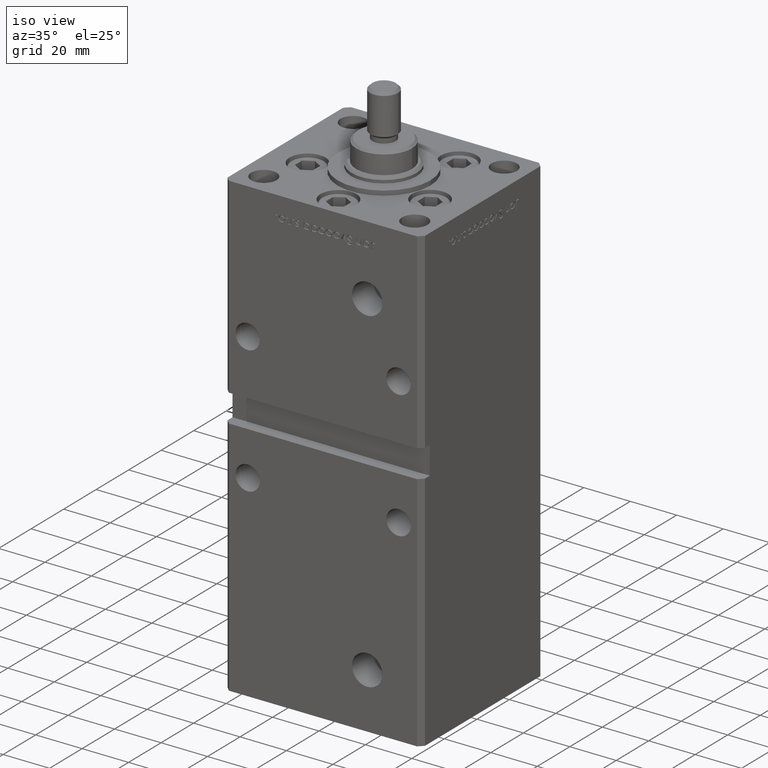
[diagram: clean part render]
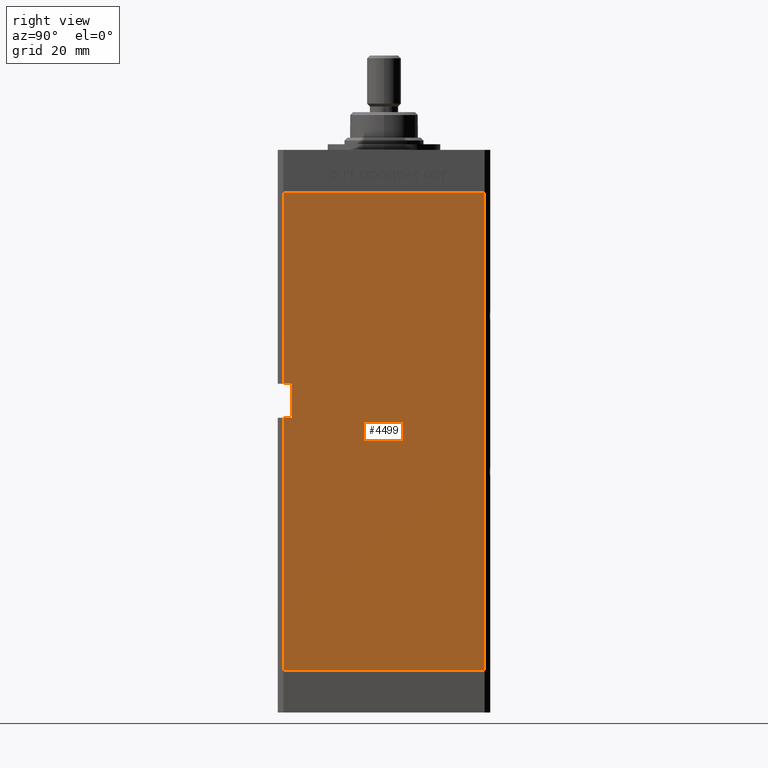
[diagram: tour spotlight — one face highlighted and labeled with its STEP entity id]
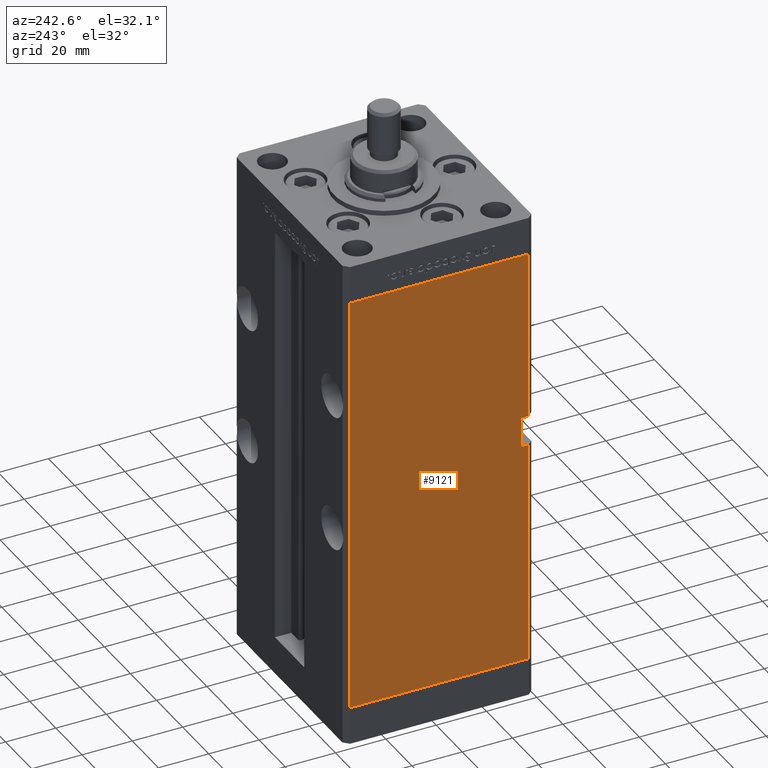
[diagram: tour spotlight — one face highlighted and labeled with its STEP entity id]
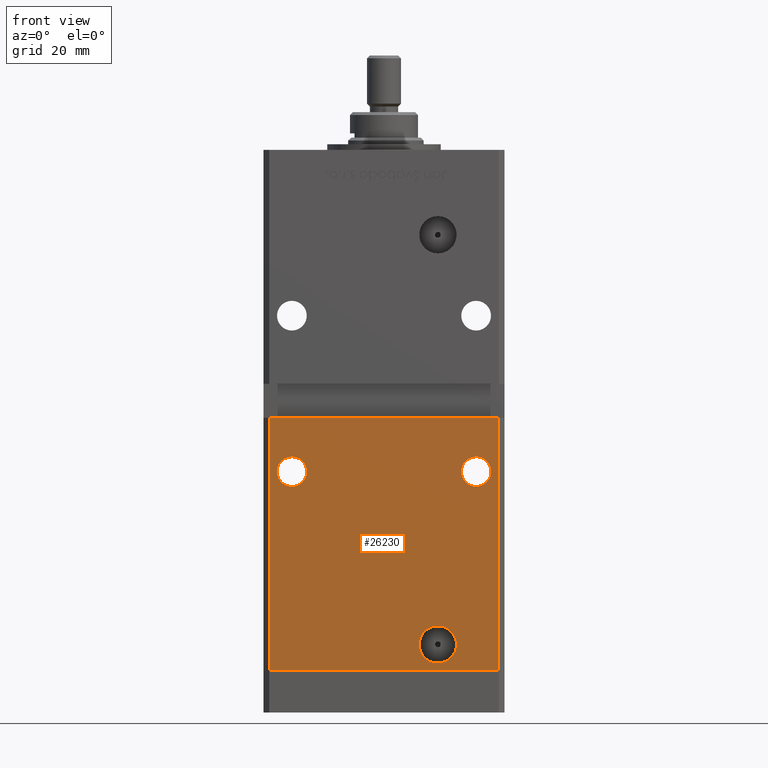
[diagram: tour spotlight — one face highlighted and labeled with its STEP entity id]
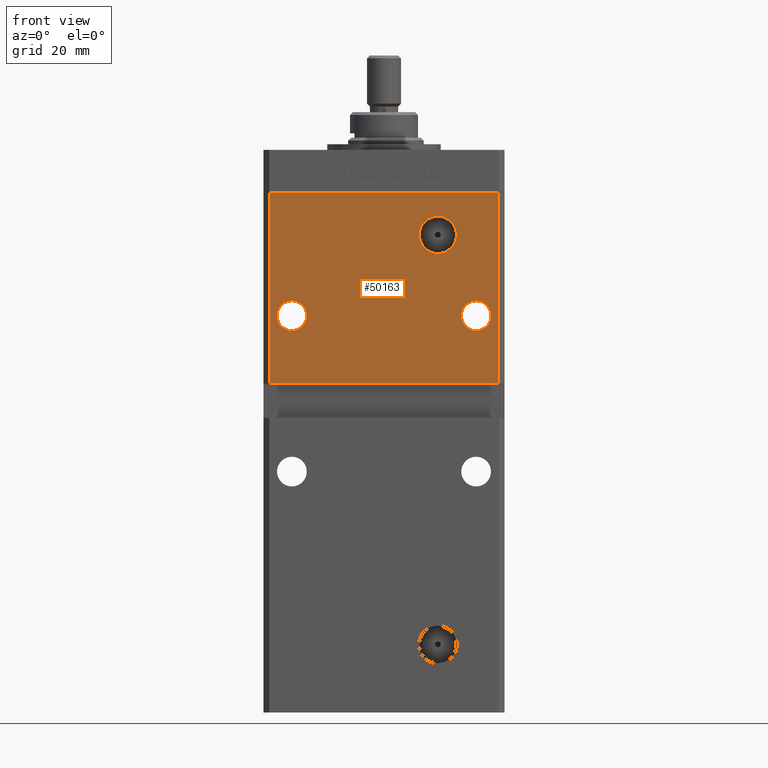
[diagram: tour spotlight — one face highlighted and labeled with its STEP entity id]
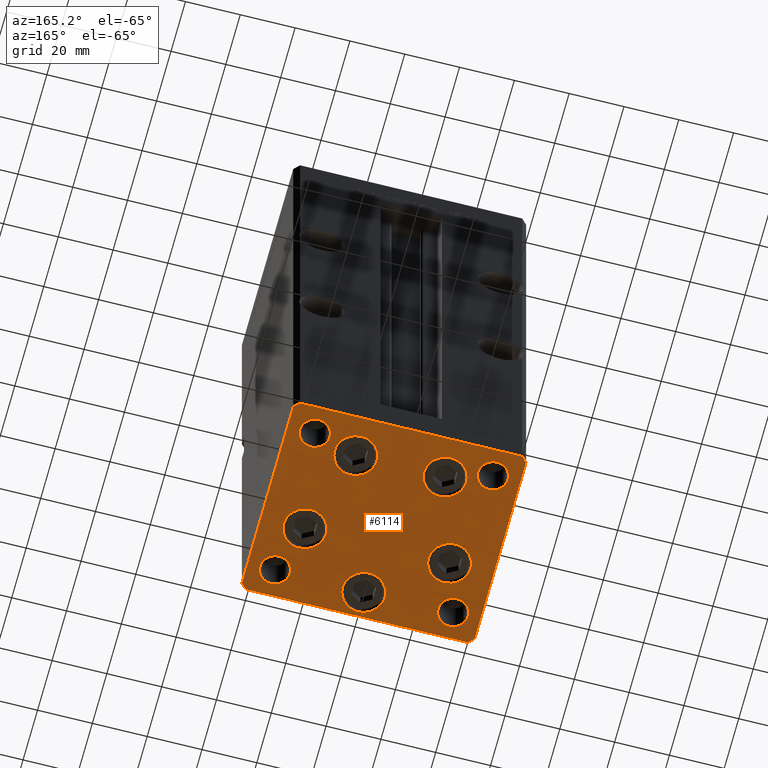
[diagram: tour spotlight — one face highlighted and labeled with its STEP entity id]
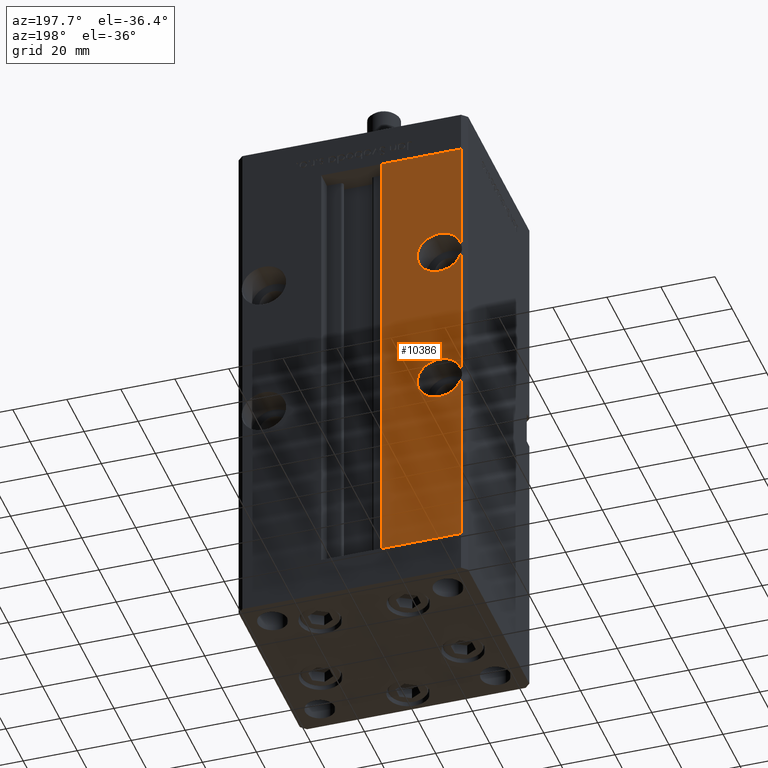
[diagram: tour spotlight — one face highlighted and labeled with its STEP entity id]
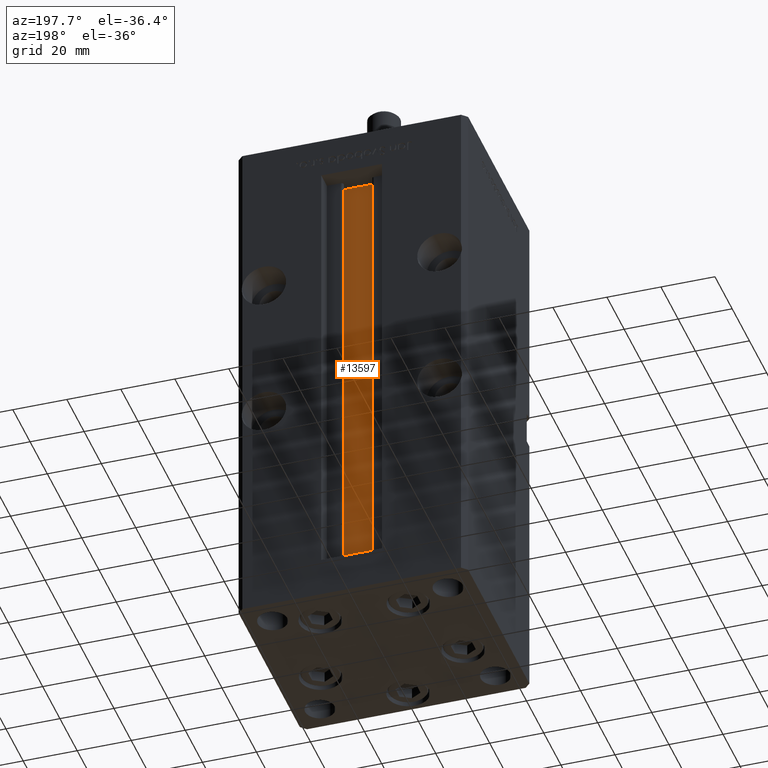
[diagram: tour spotlight — one face highlighted and labeled with its STEP entity id]
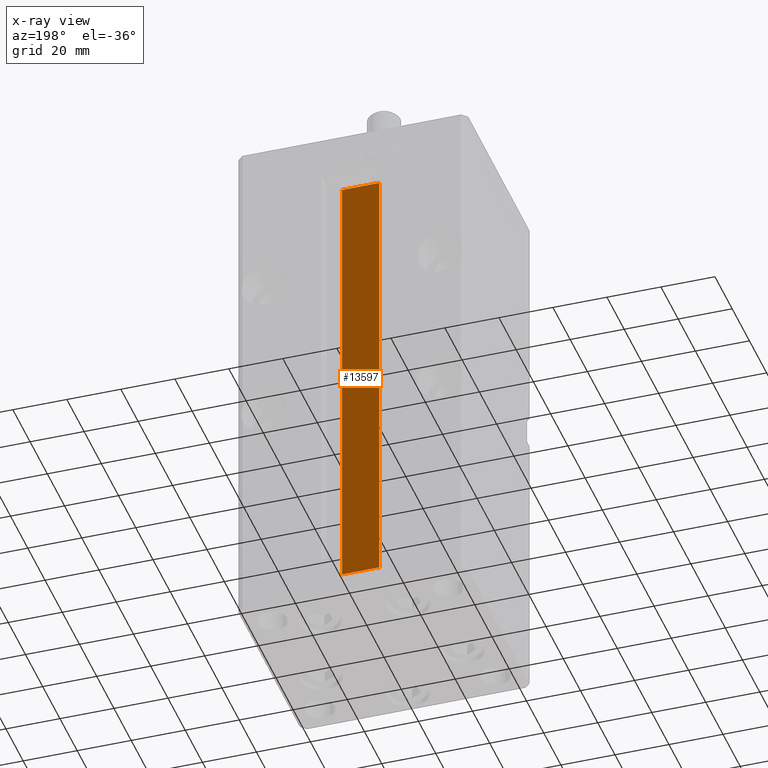
[diagram: x-ray of the same camera — body ghosted, this tour face saturated]
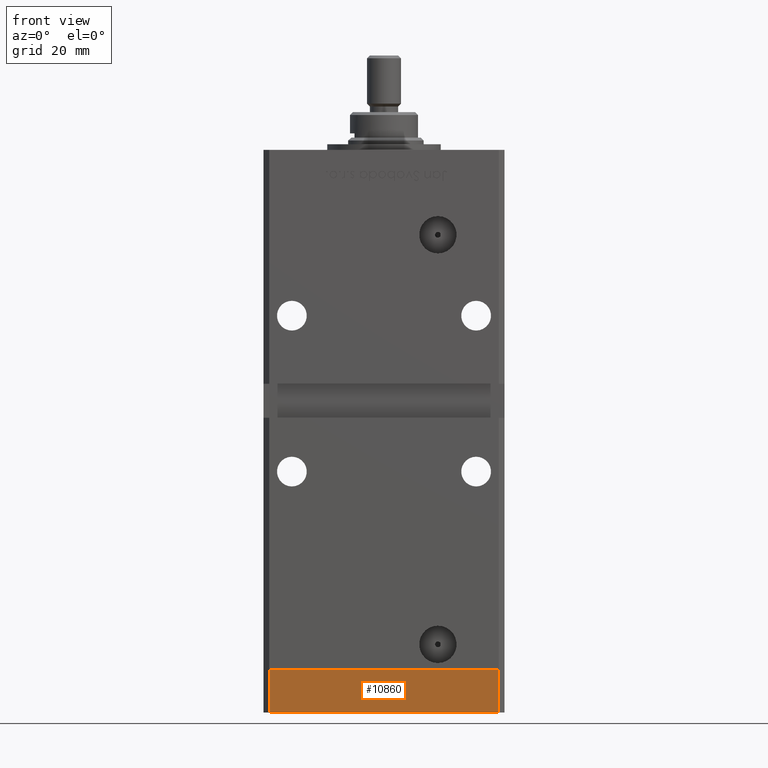
[diagram: tour spotlight — one face highlighted and labeled with its STEP entity id]
A machine part: a face-by-face anatomy tour. The part has 1247 B-rep faces; the first image is the clean iso view, then the 8 largest visible faces are spotlighted one at a time (largest first), each with its STEP entity span.

Face 1 — right view, entity #4499. In plain terms, the highlighted planar face has unit normal (1, -0, 0).
Definition (entity closure, byte-faithful):
#43 = CARTESIAN_POINT ( 'NONE',  ( 42.49999999999998579, -32.50000000000000000, 89.00000000000004263 ) ) ;
#166 = EDGE_CURVE ( 'NONE', #17412, #47171, #34411, .T. ) ;
#503 = ORIENTED_EDGE ( 'NONE', *, *, #2722, .T. ) ;
#2274 = VECTOR ( 'NONE', #8755, 1000.000000000000000 ) ;
#2722 = EDGE_CURVE ( 'NONE', #37563, #38314, #49790, .T. ) ;
#2944 = CARTESIAN_POINT ( 'NONE',  ( 42.50000000000001421, 35.50000000000000711, 168.5000000000000000 ) ) ;
#4362 = LINE ( 'NONE', #12884, #6404 ) ;
#4499 = ADVANCED_FACE ( 'NONE', ( #24505 ), #45925, .T. ) ;
#4628 = DIRECTION ( 'NONE',  ( -3.909236002201255146E-16, -1.000000000000000000, 0.000000000000000000 ) ) ;
#5510 = CARTESIAN_POINT ( 'NONE',  ( 42.49999999999998579, -35.50000000000000711, 168.5000000000000000 ) ) ;
#6404 = VECTOR ( 'NONE', #4628, 1000.000000000000000 ) ;
#7889 = LINE ( 'NONE', #40618, #15065 ) ;
#8187 = VERTEX_POINT ( 'NONE', #44275 ) ;
#8217 = ORIENTED_EDGE ( 'NONE', *, *, #20035, .T. ) ;
#8263 = EDGE_CURVE ( 'NONE', #38314, #52096, #41230, .T. ) ;
#8755 = DIRECTION ( 'NONE',  ( -0.000000000000000000, -1.000000000000000000, -0.000000000000000000 ) ) ;
#9210 = CARTESIAN_POINT ( 'NONE',  ( 42.49999999999998579, -32.50000000000000711, 101.0000000000000284 ) ) ;
#9294 = LINE ( 'NONE', #9835, #2274 ) ;
#9835 = CARTESIAN_POINT ( 'NONE',  ( 42.49999999999998579, -32.50000000000000711, 101.0000000000000284 ) ) ;
#11906 = EDGE_CURVE ( 'NONE', #37563, #8187, #13063, .T. ) ;
#12884 = CARTESIAN_POINT ( 'NONE',  ( 42.50000000000001421, 35.50000000000000711, 0.000000000000000000 ) ) ;
#13063 = LINE ( 'NONE', #9210, #39574 ) ;
#15065 = VECTOR ( 'NONE', #48871, 1000.000000000000000 ) ;
#15255 = EDGE_CURVE ( 'NONE', #25647, #19908, #7889, .T. ) ;
#15901 = ORIENTED_EDGE ( 'NONE', *, *, #15255, .T. ) ;
#16122 = CARTESIAN_POINT ( 'NONE',  ( 42.50000000000001421, 35.50000000000000711, 0.000000000000000000 ) ) ;
#16224 = DIRECTION ( 'NONE',  ( 1.000000000000000000, -3.909236002201255639E-16, 0.000000000000000000 ) ) ;
#17388 = ORIENTED_EDGE ( 'NONE', *, *, #166, .F. ) ;
#17412 = VERTEX_POINT ( 'NONE', #30239 ) ;
#17850 = CARTESIAN_POINT ( 'NONE',  ( 42.49999999999998579, -35.50000000000000711, 101.0000000000000284 ) ) ;
#18182 = ORIENTED_EDGE ( 'NONE', *, *, #8263, .T. ) ;
#18379 = EDGE_CURVE ( 'NONE', #47171, #52096, #4362, .T. ) ;
#18628 = EDGE_LOOP ( 'NONE', ( #503, #18182, #40914, #17388, #8217, #15901, #29664, #33599 ) ) ;
#19270 = DIRECTION ( 'NONE',  ( -0.000000000000000000, -0.000000000000000000, -1.000000000000000000 ) ) ;
#19908 = VERTEX_POINT ( 'NONE', #17850 ) ;
#20035 = EDGE_CURVE ( 'NONE', #17412, #25647, #32660, .T. ) ;
#20658 = DIRECTION ( 'NONE',  ( -0.000000000000000000, -1.000000000000000000, -0.000000000000000000 ) ) ;
#24443 = CARTESIAN_POINT ( 'NONE',  ( 42.49999999999998579, -35.50000000000000711, 0.000000000000000000 ) ) ;
#24505 = FACE_OUTER_BOUND ( 'NONE', #18628, .T. ) ;
#25647 = VERTEX_POINT ( 'NONE', #5510 ) ;
#27541 = CARTESIAN_POINT ( 'NONE',  ( 42.49999999999998579, -35.50000000000000711, 168.5000000000000000 ) ) ;
#29288 = CARTESIAN_POINT ( 'NONE',  ( 42.49999999999998579, -35.50000000000000711, 89.00000000000004263 ) ) ;
#29664 = ORIENTED_EDGE ( 'NONE', *, *, #53189, .F. ) ;
#30239 = CARTESIAN_POINT ( 'NONE',  ( 42.50000000000001421, 35.50000000000000711, 168.5000000000000000 ) ) ;
#32261 = AXIS2_PLACEMENT_3D ( 'NONE', #41521, #16224, #41815 ) ;
#32660 = LINE ( 'NONE', #2944, #36269 ) ;
#33086 = VECTOR ( 'NONE', #20658, 1000.000000000000000 ) ;
#33431 = VECTOR ( 'NONE', #19270, 1000.000000000000000 ) ;
#33599 = ORIENTED_EDGE ( 'NONE', *, *, #11906, .F. ) ;
#34411 = LINE ( 'NONE', #34956, #44406 ) ;
#34956 = CARTESIAN_POINT ( 'NONE',  ( 42.50000000000001421, 35.50000000000000711, 168.5000000000000000 ) ) ;
#36269 = VECTOR ( 'NONE', #40885, 1000.000000000000000 ) ;
#37563 = VERTEX_POINT ( 'NONE', #43 ) ;
#38314 = VERTEX_POINT ( 'NONE', #29288 ) ;
#38794 = DIRECTION ( 'NONE',  ( -0.000000000000000000, -0.000000000000000000, -1.000000000000000000 ) ) ;
#39574 = VECTOR ( 'NONE', #42493, 1000.000000000000000 ) ;
#40618 = CARTESIAN_POINT ( 'NONE',  ( 42.49999999999998579, -35.50000000000000711, 168.5000000000000000 ) ) ;
#40885 = DIRECTION ( 'NONE',  ( -3.909236002201255146E-16, -1.000000000000000000, 0.000000000000000000 ) ) ;
#40914 = ORIENTED_EDGE ( 'NONE', *, *, #18379, .F. ) ;
#41230 = LINE ( 'NONE', #27541, #33431 ) ;
#41521 = CARTESIAN_POINT ( 'NONE',  ( 42.50000000000001421, 35.50000000000000711, 168.5000000000000000 ) ) ;
#41815 = DIRECTION ( 'NONE',  ( 3.909236002201255639E-16, 1.000000000000000000, 0.000000000000000000 ) ) ;
#42096 = CARTESIAN_POINT ( 'NONE',  ( 42.49999999999998579, -32.50000000000000711, 89.00000000000004263 ) ) ;
#42493 = DIRECTION ( 'NONE',  ( -0.000000000000000000, -0.000000000000000000, 1.000000000000000000 ) ) ;
#44275 = CARTESIAN_POINT ( 'NONE',  ( 42.49999999999998579, -32.50000000000000711, 101.0000000000000284 ) ) ;
#44406 = VECTOR ( 'NONE', #38794, 1000.000000000000000 ) ;
#45925 = PLANE ( 'NONE',  #32261 ) ;
#47171 = VERTEX_POINT ( 'NONE', #16122 ) ;
#48871 = DIRECTION ( 'NONE',  ( -0.000000000000000000, -0.000000000000000000, -1.000000000000000000 ) ) ;
#49790 = LINE ( 'NONE', #42096, #33086 ) ;
#52096 = VERTEX_POINT ( 'NONE', #24443 ) ;
#53189 = EDGE_CURVE ( 'NONE', #8187, #19908, #9294, .T. ) ;

Face 2 — auxiliary view, entity #9121. In plain terms, the highlighted planar face has unit normal (1, 0, 0).
Definition (entity closure, byte-faithful):
#787 = VECTOR ( 'NONE', #1353, 1000.000000000000000 ) ;
#870 = ORIENTED_EDGE ( 'NONE', *, *, #37801, .F. ) ;
#1353 = DIRECTION ( 'NONE',  ( -5.782411586589358625E-16, 0.000000000000000000, -1.000000000000000000 ) ) ;
#2967 = VERTEX_POINT ( 'NONE', #44772 ) ;
#3783 = DIRECTION ( 'NONE',  ( -0.000000000000000000, -0.000000000000000000, -1.000000000000000000 ) ) ;
#5799 = DIRECTION ( 'NONE',  ( 3.909236002201255146E-16, -1.000000000000000000, 0.000000000000000000 ) ) ;
#6040 = EDGE_LOOP ( 'NONE', ( #10444, #25156, #35147, #21151, #46513, #870, #41764, #47377 ) ) ;
#6822 = DIRECTION ( 'NONE',  ( 1.000000000000000000, 3.909236002201255639E-16, -0.000000000000000000 ) ) ;
#7082 = FACE_OUTER_BOUND ( 'NONE', #6040, .T. ) ;
#7898 = DIRECTION ( 'NONE',  ( -0.000000000000000000, -0.000000000000000000, -1.000000000000000000 ) ) ;
#8337 = CARTESIAN_POINT ( 'NONE',  ( -42.49999999999998579, -32.50000000000000711, 89.00000000000004263 ) ) ;
#9121 = ADVANCED_FACE ( 'NONE', ( #7082 ), #32138, .F. ) ;
#9254 = EDGE_CURVE ( 'NONE', #30089, #31449, #33767, .T. ) ;
#10092 = CARTESIAN_POINT ( 'NONE',  ( -42.49999999999998579, -35.50000000000001421, 101.0000000000000284 ) ) ;
#10444 = ORIENTED_EDGE ( 'NONE', *, *, #9254, .F. ) ;
#10604 = DIRECTION ( 'NONE',  ( -0.000000000000000000, -1.000000000000000000, -0.000000000000000000 ) ) ;
#11353 = VERTEX_POINT ( 'NONE', #45856 ) ;
#11421 = EDGE_CURVE ( 'NONE', #16044, #2967, #24718, .T. ) ;
#12024 = CARTESIAN_POINT ( 'NONE',  ( -42.49999999999998579, -35.50000000000000711, 168.5000000000000000 ) ) ;
#15870 = DIRECTION ( 'NONE',  ( -3.909236002201255639E-16, 1.000000000000000000, 0.000000000000000000 ) ) ;
#16044 = VERTEX_POINT ( 'NONE', #26796 ) ;
#17416 = CARTESIAN_POINT ( 'NONE',  ( -42.49999999999998579, -35.50000000000000711, 168.5000000000000000 ) ) ;
#17716 = EDGE_CURVE ( 'NONE', #49947, #40066, #48802, .T. ) ;
#18193 = CARTESIAN_POINT ( 'NONE',  ( -42.50000000000001421, 35.50000000000000711, 168.5000000000000000 ) ) ;
#18961 = CARTESIAN_POINT ( 'NONE',  ( -42.49999999999998579, -32.50000000000000711, 101.0000000000000284 ) ) ;
#21151 = ORIENTED_EDGE ( 'NONE', *, *, #17716, .T. ) ;
#21337 = VECTOR ( 'NONE', #10604, 1000.000000000000000 ) ;
#24485 = EDGE_CURVE ( 'NONE', #11353, #40066, #50408, .T. ) ;
#24718 = LINE ( 'NONE', #41450, #48284 ) ;
#25156 = ORIENTED_EDGE ( 'NONE', *, *, #50371, .F. ) ;
#26332 = EDGE_CURVE ( 'NONE', #2967, #31449, #27262, .T. ) ;
#26429 = AXIS2_PLACEMENT_3D ( 'NONE', #36524, #6822, #15870 ) ;
#26669 = CARTESIAN_POINT ( 'NONE',  ( -42.49999999999998579, -32.50000000000000711, 101.0000000000000284 ) ) ;
#26796 = CARTESIAN_POINT ( 'NONE',  ( -42.50000000000001421, 35.50000000000000711, 168.5000000000000000 ) ) ;
#27262 = LINE ( 'NONE', #48647, #52159 ) ;
#28005 = VECTOR ( 'NONE', #5799, 1000.000000000000000 ) ;
#29433 = VECTOR ( 'NONE', #45729, 1000.000000000000000 ) ;
#30089 = VERTEX_POINT ( 'NONE', #36118 ) ;
#31449 = VERTEX_POINT ( 'NONE', #40976 ) ;
#32138 = PLANE ( 'NONE',  #26429 ) ;
#32177 = DIRECTION ( 'NONE',  ( 3.909236002201255146E-16, -1.000000000000000000, 0.000000000000000000 ) ) ;
#33383 = LINE ( 'NONE', #8337, #39905 ) ;
#33767 = LINE ( 'NONE', #12024, #43970 ) ;
#35147 = ORIENTED_EDGE ( 'NONE', *, *, #39009, .F. ) ;
#36118 = CARTESIAN_POINT ( 'NONE',  ( -42.49999999999998579, -35.49999999999996447, 89.00000000000004263 ) ) ;
#36524 = CARTESIAN_POINT ( 'NONE',  ( -42.50000000000001421, 35.50000000000000711, 168.5000000000000000 ) ) ;
#36936 = DIRECTION ( 'NONE',  ( -0.000000000000000000, -1.000000000000000000, -0.000000000000000000 ) ) ;
#37801 = EDGE_CURVE ( 'NONE', #16044, #11353, #38808, .T. ) ;
#38808 = LINE ( 'NONE', #18193, #28005 ) ;
#39009 = EDGE_CURVE ( 'NONE', #49947, #52005, #39018, .T. ) ;
#39018 = LINE ( 'NONE', #26669, #787 ) ;
#39905 = VECTOR ( 'NONE', #36936, 1000.000000000000000 ) ;
#40066 = VERTEX_POINT ( 'NONE', #10092 ) ;
#40976 = CARTESIAN_POINT ( 'NONE',  ( -42.49999999999998579, -35.50000000000000711, 0.000000000000000000 ) ) ;
#41450 = CARTESIAN_POINT ( 'NONE',  ( -42.50000000000001421, 35.50000000000000711, 168.5000000000000000 ) ) ;
#41764 = ORIENTED_EDGE ( 'NONE', *, *, #11421, .T. ) ;
#43970 = VECTOR ( 'NONE', #7898, 1000.000000000000000 ) ;
#44143 = CARTESIAN_POINT ( 'NONE',  ( -42.49999999999998579, -32.50000000000000711, 101.0000000000000284 ) ) ;
#44231 = CARTESIAN_POINT ( 'NONE',  ( -42.49999999999998579, -32.50000000000000711, 89.00000000000004263 ) ) ;
#44772 = CARTESIAN_POINT ( 'NONE',  ( -42.50000000000001421, 35.50000000000000711, 0.000000000000000000 ) ) ;
#45729 = DIRECTION ( 'NONE',  ( -0.000000000000000000, -0.000000000000000000, -1.000000000000000000 ) ) ;
#45856 = CARTESIAN_POINT ( 'NONE',  ( -42.49999999999998579, -35.50000000000000711, 168.5000000000000000 ) ) ;
#46513 = ORIENTED_EDGE ( 'NONE', *, *, #24485, .F. ) ;
#47377 = ORIENTED_EDGE ( 'NONE', *, *, #26332, .T. ) ;
#48284 = VECTOR ( 'NONE', #3783, 1000.000000000000000 ) ;
#48647 = CARTESIAN_POINT ( 'NONE',  ( -42.50000000000001421, 35.50000000000000711, 0.000000000000000000 ) ) ;
#48802 = LINE ( 'NONE', #44143, #21337 ) ;
#49947 = VERTEX_POINT ( 'NONE', #18961 ) ;
#50371 = EDGE_CURVE ( 'NONE', #52005, #30089, #33383, .T. ) ;
#50408 = LINE ( 'NONE', #17416, #29433 ) ;
#52005 = VERTEX_POINT ( 'NONE', #44231 ) ;
#52159 = VECTOR ( 'NONE', #32177, 1000.000000000000000 ) ;

Face 3 — front view, entity #26230. In plain terms, the highlighted planar face has unit normal (0, 1, 0).
Definition (entity closure, byte-faithful):
#130 = LINE ( 'NONE', #50453, #44854 ) ;
#1035 = CARTESIAN_POINT ( 'NONE',  ( 40.49999999999998579, -37.50000000000000711, 0.000000000000000000 ) ) ;
#1354 = LINE ( 'NONE', #43682, #45844 ) ;
#1753 = CARTESIAN_POINT ( 'NONE',  ( 32.50000000000000000, -37.50000000000000711, 64.75000000000004263 ) ) ;
#2206 = CIRCLE ( 'NONE', #46985, 5.249999999999991118 ) ;
#2368 = CARTESIAN_POINT ( 'NONE',  ( 18.99999999999998934, -37.50000000000000711, 9.000000000000007105 ) ) ;
#2880 = DIRECTION ( 'NONE',  ( 0.000000000000000000, 0.000000000000000000, -1.000000000000000000 ) ) ;
#3487 = CARTESIAN_POINT ( 'NONE',  ( 32.50000000000000000, -37.50000000000000711, 70.00000000000002842 ) ) ;
#3639 = CARTESIAN_POINT ( 'NONE',  ( -40.49999999999998579, -37.50000000000000711, 0.000000000000000000 ) ) ;
#5882 = CARTESIAN_POINT ( 'NONE',  ( -32.50000000000000000, -37.50000000000000711, 70.00000000000002842 ) ) ;
#7594 = CIRCLE ( 'NONE', #41851, 6.579999999999998295 ) ;
#7815 = DIRECTION ( 'NONE',  ( 0.000000000000000000, 1.000000000000000000, 0.000000000000000000 ) ) ;
#8824 = DIRECTION ( 'NONE',  ( 0.000000000000000000, 0.000000000000000000, -1.000000000000000000 ) ) ;
#8892 = EDGE_CURVE ( 'NONE', #31888, #40056, #48218, .T. ) ;
#9097 = FACE_BOUND ( 'NONE', #11569, .T. ) ;
#9372 = ORIENTED_EDGE ( 'NONE', *, *, #27738, .T. ) ;
#9650 = FACE_OUTER_BOUND ( 'NONE', #23984, .T. ) ;
#9999 = DIRECTION ( 'NONE',  ( 0.000000000000000000, 1.000000000000000000, 0.000000000000000000 ) ) ;
#10070 = EDGE_CURVE ( 'NONE', #27768, #48650, #130, .T. ) ;
#10462 = ORIENTED_EDGE ( 'NONE', *, *, #10070, .T. ) ;
#10544 = DIRECTION ( 'NONE',  ( -0.000000000000000000, -0.000000000000000000, -1.000000000000000000 ) ) ;
#10804 = CARTESIAN_POINT ( 'NONE',  ( 40.49999999999998579, -37.50000000000000711, 168.5000000000000000 ) ) ;
#11569 = EDGE_LOOP ( 'NONE', ( #33544, #23030 ) ) ;
#11769 = CARTESIAN_POINT ( 'NONE',  ( -32.50000000000000000, -37.50000000000000711, 64.75000000000002842 ) ) ;
#12281 = DIRECTION ( 'NONE',  ( 0.000000000000000000, 1.000000000000000000, 0.000000000000000000 ) ) ;
#12777 = DIRECTION ( 'NONE',  ( -0.000000000000000000, -0.000000000000000000, -1.000000000000000000 ) ) ;
#13712 = DIRECTION ( 'NONE',  ( 1.000000000000000000, 0.000000000000000000, 0.000000000000000000 ) ) ;
#15073 = EDGE_LOOP ( 'NONE', ( #35129, #52149 ) ) ;
#16490 = VERTEX_POINT ( 'NONE', #45619 ) ;
#17403 = EDGE_CURVE ( 'NONE', #48650, #40056, #1354, .T. ) ;
#17476 = CARTESIAN_POINT ( 'NONE',  ( 40.49999999999998579, -37.50000000000000711, 89.00000000000004263 ) ) ;
#17748 = EDGE_CURVE ( 'NONE', #25362, #35815, #24839, .T. ) ;
#18924 = CIRCLE ( 'NONE', #53985, 5.249999999999991118 ) ;
#19139 = DIRECTION ( 'NONE',  ( 0.000000000000000000, -1.000000000000000000, 0.000000000000000000 ) ) ;
#20124 = VERTEX_POINT ( 'NONE', #42266 ) ;
#20367 = EDGE_CURVE ( 'NONE', #33481, #16490, #47735, .T. ) ;
#20536 = AXIS2_PLACEMENT_3D ( 'NONE', #33682, #7815, #41642 ) ;
#20744 = CARTESIAN_POINT ( 'NONE',  ( -42.49999999999998579, -37.50000000000000711, 89.00000000000004263 ) ) ;
#22049 = FACE_BOUND ( 'NONE', #45870, .T. ) ;
#23030 = ORIENTED_EDGE ( 'NONE', *, *, #20367, .T. ) ;
#23984 = EDGE_LOOP ( 'NONE', ( #24122, #39129, #10462, #40859 ) ) ;
#24122 = ORIENTED_EDGE ( 'NONE', *, *, #8892, .F. ) ;
#24839 = CIRCLE ( 'NONE', #52054, 6.579999999999998295 ) ;
#25362 = VERTEX_POINT ( 'NONE', #49109 ) ;
#26230 = ADVANCED_FACE ( 'NONE', ( #9097, #22049, #38806, #9650 ), #30578, .F. ) ;
#27537 = CIRCLE ( 'NONE', #45074, 5.250000000000004441 ) ;
#27738 = EDGE_CURVE ( 'NONE', #46820, #20124, #2206, .T. ) ;
#27768 = VERTEX_POINT ( 'NONE', #32931 ) ;
#28999 = EDGE_CURVE ( 'NONE', #20124, #46820, #18924, .T. ) ;
#29088 = DIRECTION ( 'NONE',  ( 0.000000000000000000, 0.000000000000000000, 1.000000000000000000 ) ) ;
#30025 = CARTESIAN_POINT ( 'NONE',  ( -40.49999999999998579, -37.50000000000000711, 168.5000000000000000 ) ) ;
#30578 = PLANE ( 'NONE',  #40840 ) ;
#31196 = DIRECTION ( 'NONE',  ( 0.000000000000000000, 0.000000000000000000, 1.000000000000000000 ) ) ;
#31888 = VERTEX_POINT ( 'NONE', #17476 ) ;
#32931 = CARTESIAN_POINT ( 'NONE',  ( -40.49999999999998579, -37.50000000000000711, 89.00000000000004263 ) ) ;
#33285 = EDGE_CURVE ( 'NONE', #35815, #25362, #7594, .T. ) ;
#33481 = VERTEX_POINT ( 'NONE', #11769 ) ;
#33544 = ORIENTED_EDGE ( 'NONE', *, *, #42748, .T. ) ;
#33682 = CARTESIAN_POINT ( 'NONE',  ( -32.50000000000000000, -37.50000000000000711, 70.00000000000002842 ) ) ;
#33979 = DIRECTION ( 'NONE',  ( 0.000000000000000000, 1.000000000000000000, 0.000000000000000000 ) ) ;
#34344 = VECTOR ( 'NONE', #10544, 1000.000000000000000 ) ;
#34789 = CARTESIAN_POINT ( 'NONE',  ( 32.50000000000000000, -37.50000000000000711, 70.00000000000002842 ) ) ;
#35129 = ORIENTED_EDGE ( 'NONE', *, *, #33285, .F. ) ;
#35815 = VERTEX_POINT ( 'NONE', #53799 ) ;
#37230 = EDGE_CURVE ( 'NONE', #27768, #31888, #45194, .T. ) ;
#38628 = DIRECTION ( 'NONE',  ( 0.000000000000000000, 0.000000000000000000, 1.000000000000000000 ) ) ;
#38806 = FACE_BOUND ( 'NONE', #15073, .T. ) ;
#39129 = ORIENTED_EDGE ( 'NONE', *, *, #37230, .F. ) ;
#40056 = VERTEX_POINT ( 'NONE', #1035 ) ;
#40840 = AXIS2_PLACEMENT_3D ( 'NONE', #30025, #47324, #43194 ) ;
#40859 = ORIENTED_EDGE ( 'NONE', *, *, #17403, .T. ) ;
#41342 = DIRECTION ( 'NONE',  ( 1.000000000000000000, 0.000000000000000000, 0.000000000000000000 ) ) ;
#41642 = DIRECTION ( 'NONE',  ( 0.000000000000000000, 0.000000000000000000, 1.000000000000000000 ) ) ;
#41851 = AXIS2_PLACEMENT_3D ( 'NONE', #51159, #46752, #8824 ) ;
#42266 = CARTESIAN_POINT ( 'NONE',  ( 32.50000000000000000, -37.50000000000000711, 75.25000000000002842 ) ) ;
#42748 = EDGE_CURVE ( 'NONE', #16490, #33481, #27537, .T. ) ;
#43194 = DIRECTION ( 'NONE',  ( 0.000000000000000000, -0.000000000000000000, 1.000000000000000000 ) ) ;
#43682 = CARTESIAN_POINT ( 'NONE',  ( -40.49999999999998579, -37.50000000000000711, 0.000000000000000000 ) ) ;
#44854 = VECTOR ( 'NONE', #12777, 1000.000000000000000 ) ;
#45074 = AXIS2_PLACEMENT_3D ( 'NONE', #5882, #9999, #31196 ) ;
#45194 = LINE ( 'NONE', #20744, #51698 ) ;
#45619 = CARTESIAN_POINT ( 'NONE',  ( -32.50000000000000000, -37.50000000000000711, 75.25000000000004263 ) ) ;
#45844 = VECTOR ( 'NONE', #13712, 1000.000000000000000 ) ;
#45870 = EDGE_LOOP ( 'NONE', ( #49359, #9372 ) ) ;
#46752 = DIRECTION ( 'NONE',  ( 0.000000000000000000, -1.000000000000000000, 0.000000000000000000 ) ) ;
#46820 = VERTEX_POINT ( 'NONE', #1753 ) ;
#46985 = AXIS2_PLACEMENT_3D ( 'NONE', #3487, #12281, #29088 ) ;
#47324 = DIRECTION ( 'NONE',  ( 0.000000000000000000, 1.000000000000000000, 0.000000000000000000 ) ) ;
#47735 = CIRCLE ( 'NONE', #20536, 5.250000000000004441 ) ;
#48218 = LINE ( 'NONE', #10804, #34344 ) ;
#48650 = VERTEX_POINT ( 'NONE', #3639 ) ;
#49109 = CARTESIAN_POINT ( 'NONE',  ( 18.99999999999998934, -37.50000000000000711, 15.58000000000000718 ) ) ;
#49359 = ORIENTED_EDGE ( 'NONE', *, *, #28999, .T. ) ;
#50453 = CARTESIAN_POINT ( 'NONE',  ( -40.49999999999998579, -37.50000000000000711, 168.5000000000000000 ) ) ;
#51159 = CARTESIAN_POINT ( 'NONE',  ( 18.99999999999998934, -37.50000000000000711, 9.000000000000007105 ) ) ;
#51698 = VECTOR ( 'NONE', #41342, 1000.000000000000000 ) ;
#52054 = AXIS2_PLACEMENT_3D ( 'NONE', #2368, #19139, #2880 ) ;
#52149 = ORIENTED_EDGE ( 'NONE', *, *, #17748, .F. ) ;
#53799 = CARTESIAN_POINT ( 'NONE',  ( 18.99999999999998934, -37.50000000000000711, 2.420000000000009699 ) ) ;
#53985 = AXIS2_PLACEMENT_3D ( 'NONE', #34789, #33979, #38628 ) ;

Face 4 — front view, entity #50163. In plain terms, the highlighted planar face has unit normal (0, 1, 0).
Definition (entity closure, byte-faithful):
#348 = CIRCLE ( 'NONE', #32854, 5.250000000000004441 ) ;
#1611 = LINE ( 'NONE', #43385, #22323 ) ;
#1755 = CARTESIAN_POINT ( 'NONE',  ( 18.99999999999997158, -37.50000000000000711, 146.9199999999999875 ) ) ;
#2683 = ORIENTED_EDGE ( 'NONE', *, *, #44282, .T. ) ;
#2964 = CIRCLE ( 'NONE', #32083, 5.250000000000004441 ) ;
#3357 = CARTESIAN_POINT ( 'NONE',  ( 32.50000000000000000, -37.50000000000000711, 130.2500000000000284 ) ) ;
#3402 = DIRECTION ( 'NONE',  ( 0.000000000000000000, 0.000000000000000000, -1.000000000000000000 ) ) ;
#3798 = LINE ( 'NONE', #50272, #53991 ) ;
#4359 = DIRECTION ( 'NONE',  ( 0.000000000000000000, 0.000000000000000000, 1.000000000000000000 ) ) ;
#5160 = DIRECTION ( 'NONE',  ( 0.000000000000000000, 0.000000000000000000, -1.000000000000000000 ) ) ;
#5364 = ORIENTED_EDGE ( 'NONE', *, *, #30705, .T. ) ;
#5417 = VECTOR ( 'NONE', #7739, 1000.000000000000000 ) ;
#5814 = CARTESIAN_POINT ( 'NONE',  ( -40.49999999999998579, -37.50000000000000711, 168.5000000000000000 ) ) ;
#6217 = VECTOR ( 'NONE', #13781, 1000.000000000000000 ) ;
#6393 = VERTEX_POINT ( 'NONE', #42191 ) ;
#6432 = VERTEX_POINT ( 'NONE', #1755 ) ;
#6827 = DIRECTION ( 'NONE',  ( 0.000000000000000000, 0.000000000000000000, 1.000000000000000000 ) ) ;
#7087 = CARTESIAN_POINT ( 'NONE',  ( 32.50000000000000000, -37.50000000000000711, 125.0000000000000284 ) ) ;
#7358 = FACE_BOUND ( 'NONE', #28239, .T. ) ;
#7739 = DIRECTION ( 'NONE',  ( -1.000000000000000000, -0.000000000000000000, -0.000000000000000000 ) ) ;
#8085 = EDGE_CURVE ( 'NONE', #14340, #17826, #51737, .T. ) ;
#8200 = CARTESIAN_POINT ( 'NONE',  ( -32.50000000000000000, -37.50000000000000711, 125.0000000000000284 ) ) ;
#9354 = CARTESIAN_POINT ( 'NONE',  ( 40.49999999999997868, -37.50000000000000711, 101.0000000000000284 ) ) ;
#10737 = AXIS2_PLACEMENT_3D ( 'NONE', #43907, #39514, #5160 ) ;
#11194 = CARTESIAN_POINT ( 'NONE',  ( -40.49999999999998579, -37.50000000000000711, 168.5000000000000000 ) ) ;
#11217 = DIRECTION ( 'NONE',  ( 0.000000000000000000, 0.000000000000000000, 1.000000000000000000 ) ) ;
#12426 = CARTESIAN_POINT ( 'NONE',  ( 40.49999999999998579, -37.50000000000000711, 168.5000000000000000 ) ) ;
#12595 = DIRECTION ( 'NONE',  ( 0.000000000000000000, 1.000000000000000000, 0.000000000000000000 ) ) ;
#12979 = CARTESIAN_POINT ( 'NONE',  ( -32.50000000000000000, -37.50000000000000711, 130.2500000000000284 ) ) ;
#13126 = FACE_BOUND ( 'NONE', #19977, .T. ) ;
#13781 = DIRECTION ( 'NONE',  ( -0.000000000000000000, -0.000000000000000000, -1.000000000000000000 ) ) ;
#14340 = VERTEX_POINT ( 'NONE', #11194 ) ;
#15170 = LINE ( 'NONE', #49259, #5417 ) ;
#15868 = EDGE_CURVE ( 'NONE', #6432, #6393, #44927, .T. ) ;
#15904 = DIRECTION ( 'NONE',  ( 0.000000000000000000, 1.000000000000000000, 0.000000000000000000 ) ) ;
#16141 = EDGE_CURVE ( 'NONE', #20797, #17826, #15170, .T. ) ;
#17826 = VERTEX_POINT ( 'NONE', #52926 ) ;
#19977 = EDGE_LOOP ( 'NONE', ( #27783, #37794 ) ) ;
#20191 = DIRECTION ( 'NONE',  ( -0.000000000000000000, 1.000000000000000000, -0.000000000000000000 ) ) ;
#20797 = VERTEX_POINT ( 'NONE', #9354 ) ;
#21410 = PLANE ( 'NONE',  #48641 ) ;
#21867 = EDGE_CURVE ( 'NONE', #28230, #20797, #1611, .T. ) ;
#22323 = VECTOR ( 'NONE', #46972, 1000.000000000000000 ) ;
#22813 = CARTESIAN_POINT ( 'NONE',  ( 32.50000000000000000, -37.50000000000000711, 125.0000000000000284 ) ) ;
#23358 = DIRECTION ( 'NONE',  ( 0.000000000000000000, 1.000000000000000000, 0.000000000000000000 ) ) ;
#23574 = ORIENTED_EDGE ( 'NONE', *, *, #45316, .T. ) ;
#24167 = FACE_BOUND ( 'NONE', #32424, .T. ) ;
#25063 = EDGE_CURVE ( 'NONE', #14340, #28230, #3798, .T. ) ;
#25555 = CARTESIAN_POINT ( 'NONE',  ( -40.49999999999998579, -37.50000000000000711, 168.5000000000000000 ) ) ;
#25628 = VERTEX_POINT ( 'NONE', #25912 ) ;
#25676 = AXIS2_PLACEMENT_3D ( 'NONE', #44662, #20191, #3402 ) ;
#25836 = EDGE_CURVE ( 'NONE', #43046, #51282, #2964, .T. ) ;
#25912 = CARTESIAN_POINT ( 'NONE',  ( 32.50000000000000000, -37.50000000000000711, 119.7500000000000284 ) ) ;
#27783 = ORIENTED_EDGE ( 'NONE', *, *, #15868, .T. ) ;
#27791 = CARTESIAN_POINT ( 'NONE',  ( -32.50000000000000000, -37.50000000000000711, 125.0000000000000284 ) ) ;
#28230 = VERTEX_POINT ( 'NONE', #12426 ) ;
#28239 = EDGE_LOOP ( 'NONE', ( #2683, #5364 ) ) ;
#28627 = CIRCLE ( 'NONE', #35655, 5.250000000000004441 ) ;
#30705 = EDGE_CURVE ( 'NONE', #25628, #39251, #28627, .T. ) ;
#32083 = AXIS2_PLACEMENT_3D ( 'NONE', #27791, #15904, #32172 ) ;
#32172 = DIRECTION ( 'NONE',  ( 0.000000000000000000, 0.000000000000000000, 1.000000000000000000 ) ) ;
#32363 = ORIENTED_EDGE ( 'NONE', *, *, #16141, .F. ) ;
#32424 = EDGE_LOOP ( 'NONE', ( #37930, #23574 ) ) ;
#32854 = AXIS2_PLACEMENT_3D ( 'NONE', #22813, #52212, #11217 ) ;
#35453 = EDGE_LOOP ( 'NONE', ( #43452, #32363, #53962, #36075 ) ) ;
#35655 = AXIS2_PLACEMENT_3D ( 'NONE', #7087, #23358, #6827 ) ;
#36075 = ORIENTED_EDGE ( 'NONE', *, *, #25063, .F. ) ;
#37794 = ORIENTED_EDGE ( 'NONE', *, *, #39969, .T. ) ;
#37930 = ORIENTED_EDGE ( 'NONE', *, *, #25836, .T. ) ;
#38714 = DIRECTION ( 'NONE',  ( 0.000000000000000000, 1.000000000000000000, 0.000000000000000000 ) ) ;
#39251 = VERTEX_POINT ( 'NONE', #3357 ) ;
#39514 = DIRECTION ( 'NONE',  ( -0.000000000000000000, 1.000000000000000000, -0.000000000000000000 ) ) ;
#39969 = EDGE_CURVE ( 'NONE', #6393, #6432, #43253, .T. ) ;
#41179 = CARTESIAN_POINT ( 'NONE',  ( -32.50000000000000000, -37.50000000000000711, 119.7500000000000284 ) ) ;
#42034 = DIRECTION ( 'NONE',  ( 1.000000000000000000, 0.000000000000000000, 0.000000000000000000 ) ) ;
#42191 = CARTESIAN_POINT ( 'NONE',  ( 18.99999999999997158, -37.50000000000000711, 160.0800000000000125 ) ) ;
#43046 = VERTEX_POINT ( 'NONE', #12979 ) ;
#43253 = CIRCLE ( 'NONE', #10737, 6.580000000000002736 ) ;
#43385 = CARTESIAN_POINT ( 'NONE',  ( 40.49999999999998579, -37.50000000000000711, 168.5000000000000000 ) ) ;
#43452 = ORIENTED_EDGE ( 'NONE', *, *, #8085, .T. ) ;
#43907 = CARTESIAN_POINT ( 'NONE',  ( 18.99999999999997158, -37.50000000000000711, 153.5000000000000000 ) ) ;
#44282 = EDGE_CURVE ( 'NONE', #39251, #25628, #348, .T. ) ;
#44662 = CARTESIAN_POINT ( 'NONE',  ( 18.99999999999997158, -37.50000000000000711, 153.5000000000000000 ) ) ;
#44927 = CIRCLE ( 'NONE', #25676, 6.580000000000002736 ) ;
#45316 = EDGE_CURVE ( 'NONE', #51282, #43046, #50437, .T. ) ;
#46421 = FACE_OUTER_BOUND ( 'NONE', #35453, .T. ) ;
#46972 = DIRECTION ( 'NONE',  ( -0.000000000000000000, -0.000000000000000000, -1.000000000000000000 ) ) ;
#48641 = AXIS2_PLACEMENT_3D ( 'NONE', #25555, #38714, #51082 ) ;
#49259 = CARTESIAN_POINT ( 'NONE',  ( -42.49999999999998579, -37.50000000000000711, 101.0000000000000284 ) ) ;
#50163 = ADVANCED_FACE ( 'NONE', ( #7358, #24167, #46421, #13126 ), #21410, .F. ) ;
#50272 = CARTESIAN_POINT ( 'NONE',  ( -40.49999999999998579, -37.50000000000000711, 168.5000000000000000 ) ) ;
#50437 = CIRCLE ( 'NONE', #52198, 5.250000000000004441 ) ;
#51082 = DIRECTION ( 'NONE',  ( 0.000000000000000000, -0.000000000000000000, 1.000000000000000000 ) ) ;
#51282 = VERTEX_POINT ( 'NONE', #41179 ) ;
#51737 = LINE ( 'NONE', #5814, #6217 ) ;
#52198 = AXIS2_PLACEMENT_3D ( 'NONE', #8200, #12595, #4359 ) ;
#52212 = DIRECTION ( 'NONE',  ( 0.000000000000000000, 1.000000000000000000, 0.000000000000000000 ) ) ;
#52926 = CARTESIAN_POINT ( 'NONE',  ( -40.49999999999998579, -37.50000000000000711, 101.0000000000000284 ) ) ;
#53962 = ORIENTED_EDGE ( 'NONE', *, *, #21867, .F. ) ;
#53991 = VECTOR ( 'NONE', #42034, 1000.000000000000000 ) ;

Face 5 — auxiliary view, entity #6114. In plain terms, the highlighted planar face has unit normal (0, 0, -1).
Definition (entity closure, byte-faithful):
#53 = VECTOR ( 'NONE', #2330, 1000.000000000000000 ) ;
#122 = AXIS2_PLACEMENT_3D ( 'NONE', #50375, #20143, #3080 ) ;
#188 = DIRECTION ( 'NONE',  ( 1.000000000000000000, 0.000000000000000000, 0.000000000000000000 ) ) ;
#336 = EDGE_CURVE ( 'NONE', #36629, #7763, #20808, .T. ) ;
#699 = CARTESIAN_POINT ( 'NONE',  ( 42.50000000000000711, -35.50000000000000000, 0.000000000000000000 ) ) ;
#709 = ORIENTED_EDGE ( 'NONE', *, *, #39158, .T. ) ;
#1098 = AXIS2_PLACEMENT_3D ( 'NONE', #28778, #4283, #8682 ) ;
#1281 = CARTESIAN_POINT ( 'NONE',  ( 7.750000000000003553, -28.00000000000000000, 0.000000000000000000 ) ) ;
#1388 = EDGE_LOOP ( 'NONE', ( #43584, #43257 ) ) ;
#1508 = DIRECTION ( 'NONE',  ( 1.000000000000000000, 0.000000000000000000, 0.000000000000000000 ) ) ;
#1831 = CIRCLE ( 'NONE', #47474, 5.499999999999998224 ) ;
#1837 = EDGE_CURVE ( 'NONE', #35234, #18561, #49702, .T. ) ;
#2051 = CARTESIAN_POINT ( 'NONE',  ( -40.49999999999999289, -37.50000000000002132, 0.000000000000000000 ) ) ;
#2137 = VERTEX_POINT ( 'NONE', #37628 ) ;
#2214 = CARTESIAN_POINT ( 'NONE',  ( -40.50000000000000711, 37.49999999999997868, 0.000000000000000000 ) ) ;
#2330 = DIRECTION ( 'NONE',  ( 1.000000000000000000, 1.713307136767217096E-16, 0.000000000000000000 ) ) ;
#2603 = CARTESIAN_POINT ( 'NONE',  ( -18.64865316429776954, -9.333333333333335702, 0.000000000000000000 ) ) ;
#2743 = CARTESIAN_POINT ( 'NONE',  ( 32.50000000000000000, -27.49999999999999645, 0.000000000000000000 ) ) ;
#2749 = CIRCLE ( 'NONE', #122, 7.750000000000000000 ) ;
#2795 = VERTEX_POINT ( 'NONE', #13199 ) ;
#2798 = EDGE_LOOP ( 'NONE', ( #27117, #20232 ) ) ;
#2883 = EDGE_CURVE ( 'NONE', #2795, #53687, #23373, .T. ) ;
#2937 = EDGE_CURVE ( 'NONE', #10573, #15747, #36565, .T. ) ;
#3042 = EDGE_CURVE ( 'NONE', #5967, #24119, #17258, .T. ) ;
#3080 = DIRECTION ( 'NONE',  ( 1.000000000000000000, 0.000000000000000000, 0.000000000000000000 ) ) ;
#3252 = DIRECTION ( 'NONE',  ( 1.000000000000000000, 0.000000000000000000, 0.000000000000000000 ) ) ;
#4101 = VECTOR ( 'NONE', #10434, 1000.000000000000000 ) ;
#4236 = ORIENTED_EDGE ( 'NONE', *, *, #15092, .F. ) ;
#4283 = DIRECTION ( 'NONE',  ( 0.000000000000000000, -0.000000000000000000, -1.000000000000000000 ) ) ;
#4352 = CARTESIAN_POINT ( 'NONE',  ( -32.50000000000000000, -27.49999999999999645, 0.000000000000000000 ) ) ;
#4647 = ORIENTED_EDGE ( 'NONE', *, *, #19147, .T. ) ;
#4673 = VECTOR ( 'NONE', #53841, 1000.000000000000114 ) ;
#4944 = AXIS2_PLACEMENT_3D ( 'NONE', #37140, #40980, #44570 ) ;
#5388 = FACE_BOUND ( 'NONE', #28710, .T. ) ;
#5466 = DIRECTION ( 'NONE',  ( -0.000000000000000000, 0.000000000000000000, 1.000000000000000000 ) ) ;
#5967 = VERTEX_POINT ( 'NONE', #48853 ) ;
#6114 = ADVANCED_FACE ( 'NONE', ( #12540, #14451, #10056, #27666, #31253, #47460, #5388, #30978, #52658, #14728 ), #35905, .T. ) ;
#6686 = DIRECTION ( 'NONE',  ( 0.000000000000000000, -0.000000000000000000, -1.000000000000000000 ) ) ;
#7100 = DIRECTION ( 'NONE',  ( -0.000000000000000000, 0.000000000000000000, 1.000000000000000000 ) ) ;
#7385 = DIRECTION ( 'NONE',  ( -0.7071067811865463515, -0.7071067811865487940, 0.000000000000000000 ) ) ;
#7645 = VERTEX_POINT ( 'NONE', #29638 ) ;
#7763 = VERTEX_POINT ( 'NONE', #21378 ) ;
#7777 = EDGE_LOOP ( 'NONE', ( #32550, #4236 ) ) ;
#7950 = CARTESIAN_POINT ( 'NONE',  ( -32.50000000000000000, 27.50000000000000355, 0.000000000000000000 ) ) ;
#8314 = VECTOR ( 'NONE', #46649, 1000.000000000000000 ) ;
#8654 = EDGE_CURVE ( 'NONE', #15747, #10573, #1831, .T. ) ;
#8682 = DIRECTION ( 'NONE',  ( 1.000000000000000000, 0.000000000000000000, 0.000000000000000000 ) ) ;
#8988 = CIRCLE ( 'NONE', #11603, 7.750000000000000000 ) ;
#9031 = CARTESIAN_POINT ( 'NONE',  ( 42.49999999999992895, 35.50000000000000000, 0.000000000000000000 ) ) ;
#9358 = AXIS2_PLACEMENT_3D ( 'NONE', #11233, #7100, #36007 ) ;
#9961 = VECTOR ( 'NONE', #18535, 1000.000000000000000 ) ;
#10056 = FACE_BOUND ( 'NONE', #1388, .T. ) ;
#10434 = DIRECTION ( 'NONE',  ( 0.7071067811865463515, -0.7071067811865487940, 0.000000000000000000 ) ) ;
#10504 = VERTEX_POINT ( 'NONE', #46410 ) ;
#10573 = VERTEX_POINT ( 'NONE', #43895 ) ;
#10609 = DIRECTION ( 'NONE',  ( -0.000000000000000000, 0.000000000000000000, 1.000000000000000000 ) ) ;
#11233 = CARTESIAN_POINT ( 'NONE',  ( 32.50000000000000000, 27.49999999999999645, 0.000000000000000000 ) ) ;
#11603 = AXIS2_PLACEMENT_3D ( 'NONE', #43813, #44076, #39157 ) ;
#12043 = EDGE_CURVE ( 'NONE', #53687, #41135, #27374, .T. ) ;
#12540 = FACE_BOUND ( 'NONE', #33448, .T. ) ;
#13172 = CARTESIAN_POINT ( 'NONE',  ( 34.14865316429776954, -9.333333333333328596, 0.000000000000000000 ) ) ;
#13199 = CARTESIAN_POINT ( 'NONE',  ( -42.50000000000000000, -35.50000000000000711, 0.000000000000000000 ) ) ;
#13390 = ORIENTED_EDGE ( 'NONE', *, *, #46847, .T. ) ;
#14047 = EDGE_CURVE ( 'NONE', #23828, #7645, #52750, .T. ) ;
#14282 = CARTESIAN_POINT ( 'NONE',  ( -42.50000000000000000, -35.50000000000000711, 0.000000000000000000 ) ) ;
#14451 = FACE_BOUND ( 'NONE', #24011, .T. ) ;
#14667 = EDGE_CURVE ( 'NONE', #18561, #35234, #2749, .T. ) ;
#14728 = FACE_BOUND ( 'NONE', #30632, .T. ) ;
#14946 = ORIENTED_EDGE ( 'NONE', *, *, #2883, .T. ) ;
#14982 = DIRECTION ( 'NONE',  ( 1.000000000000000000, 0.000000000000000000, 0.000000000000000000 ) ) ;
#15092 = EDGE_CURVE ( 'NONE', #30843, #31823, #22093, .T. ) ;
#15629 = VERTEX_POINT ( 'NONE', #28519 ) ;
#15747 = VERTEX_POINT ( 'NONE', #50494 ) ;
#16194 = DIRECTION ( 'NONE',  ( -0.000000000000000000, 0.000000000000000000, 1.000000000000000000 ) ) ;
#16722 = DIRECTION ( 'NONE',  ( 0.000000000000000000, -0.000000000000000000, -1.000000000000000000 ) ) ;
#16843 = EDGE_CURVE ( 'NONE', #39648, #41319, #8988, .T. ) ;
#16943 = ORIENTED_EDGE ( 'NONE', *, *, #42741, .T. ) ;
#17130 = DIRECTION ( 'NONE',  ( 1.000000000000000000, 0.000000000000000000, 0.000000000000000000 ) ) ;
#17258 = CIRCLE ( 'NONE', #34861, 5.499999999999998224 ) ;
#17298 = LINE ( 'NONE', #9031, #4673 ) ;
#17585 = CARTESIAN_POINT ( 'NONE',  ( -32.50000000000000000, 27.50000000000000355, 0.000000000000000000 ) ) ;
#17870 = CARTESIAN_POINT ( 'NONE',  ( 26.39865316429776954, -9.333333333333330373, 0.000000000000000000 ) ) ;
#18031 = ORIENTED_EDGE ( 'NONE', *, *, #28624, .T. ) ;
#18535 = DIRECTION ( 'NONE',  ( -1.172770800660376741E-15, 1.000000000000000000, 0.000000000000000000 ) ) ;
#18561 = VERTEX_POINT ( 'NONE', #2603 ) ;
#18619 = AXIS2_PLACEMENT_3D ( 'NONE', #17585, #5466, #46717 ) ;
#19130 = DIRECTION ( 'NONE',  ( -0.000000000000000000, 0.000000000000000000, 1.000000000000000000 ) ) ;
#19147 = EDGE_CURVE ( 'NONE', #2137, #36629, #17298, .T. ) ;
#19536 = CARTESIAN_POINT ( 'NONE',  ( 3.429011037612589276E-15, -28.00000000000000000, 0.000000000000000000 ) ) ;
#20143 = DIRECTION ( 'NONE',  ( 0.000000000000000000, -0.000000000000000000, -1.000000000000000000 ) ) ;
#20232 = ORIENTED_EDGE ( 'NONE', *, *, #14667, .T. ) ;
#20734 = ORIENTED_EDGE ( 'NONE', *, *, #14047, .T. ) ;
#20808 = LINE ( 'NONE', #42512, #38270 ) ;
#21228 = AXIS2_PLACEMENT_3D ( 'NONE', #2743, #32716, #45349 ) ;
#21378 = CARTESIAN_POINT ( 'NONE',  ( -40.50000000000000711, 37.49999999999997868, 0.000000000000000000 ) ) ;
#21556 = EDGE_CURVE ( 'NONE', #7645, #23828, #25873, .T. ) ;
#21653 = CARTESIAN_POINT ( 'NONE',  ( -42.50000000000000711, 35.49999999999997158, 0.000000000000000000 ) ) ;
#22093 = CIRCLE ( 'NONE', #18619, 5.499999999999998224 ) ;
#22318 = VECTOR ( 'NONE', #7385, 1000.000000000000000 ) ;
#22496 = AXIS2_PLACEMENT_3D ( 'NONE', #53386, #49265, #35568 ) ;
#22933 = VERTEX_POINT ( 'NONE', #25655 ) ;
#23048 = CIRCLE ( 'NONE', #1098, 7.750000000000000000 ) ;
#23373 = LINE ( 'NONE', #14282, #4101 ) ;
#23797 = DIRECTION ( 'NONE',  ( 0.000000000000000000, -0.000000000000000000, -1.000000000000000000 ) ) ;
#23828 = VERTEX_POINT ( 'NONE', #41595 ) ;
#24011 = EDGE_LOOP ( 'NONE', ( #24593, #51758 ) ) ;
#24068 = AXIS2_PLACEMENT_3D ( 'NONE', #45740, #45473, #28721 ) ;
#24119 = VERTEX_POINT ( 'NONE', #39579 ) ;
#24440 = ORIENTED_EDGE ( 'NONE', *, *, #40143, .T. ) ;
#24593 = ORIENTED_EDGE ( 'NONE', *, *, #38167, .T. ) ;
#25655 = CARTESIAN_POINT ( 'NONE',  ( 8.572913342905422951, 22.75000000000000000, 0.000000000000000000 ) ) ;
#25867 = ORIENTED_EDGE ( 'NONE', *, *, #8654, .F. ) ;
#25873 = CIRCLE ( 'NONE', #24068, 5.499999999999998224 ) ;
#26031 = CIRCLE ( 'NONE', #52324, 7.750000000000000000 ) ;
#26276 = EDGE_CURVE ( 'NONE', #7763, #15629, #40663, .T. ) ;
#26594 = CARTESIAN_POINT ( 'NONE',  ( 0.000000000000000000, 0.000000000000000000, 0.000000000000000000 ) ) ;
#26802 = CARTESIAN_POINT ( 'NONE',  ( 40.50000000000000000, -37.50000000000000711, 0.000000000000000000 ) ) ;
#26865 = ORIENTED_EDGE ( 'NONE', *, *, #12043, .T. ) ;
#27107 = ORIENTED_EDGE ( 'NONE', *, *, #336, .T. ) ;
#27117 = ORIENTED_EDGE ( 'NONE', *, *, #1837, .T. ) ;
#27374 = LINE ( 'NONE', #2051, #53 ) ;
#27666 = FACE_BOUND ( 'NONE', #51226, .T. ) ;
#27814 = EDGE_CURVE ( 'NONE', #15629, #2795, #29905, .T. ) ;
#27918 = VERTEX_POINT ( 'NONE', #1281 ) ;
#27944 = CARTESIAN_POINT ( 'NONE',  ( 16.32291334290542295, 22.75000000000000000, 0.000000000000000000 ) ) ;
#27978 = ORIENTED_EDGE ( 'NONE', *, *, #3042, .T. ) ;
#28211 = CARTESIAN_POINT ( 'NONE',  ( 32.50000000000000000, 27.49999999999999645, 0.000000000000000000 ) ) ;
#28282 = CARTESIAN_POINT ( 'NONE',  ( -40.49999999999999289, -37.50000000000002132, 0.000000000000000000 ) ) ;
#28519 = CARTESIAN_POINT ( 'NONE',  ( -42.50000000000000711, 35.49999999999997158, 0.000000000000000000 ) ) ;
#28624 = EDGE_CURVE ( 'NONE', #27918, #10504, #33821, .T. ) ;
#28710 = EDGE_LOOP ( 'NONE', ( #39724, #20734 ) ) ;
#28721 = DIRECTION ( 'NONE',  ( 1.000000000000000000, 0.000000000000000000, 0.000000000000000000 ) ) ;
#28778 = CARTESIAN_POINT ( 'NONE',  ( -16.32291334290543006, 22.74999999999999645, 0.000000000000000000 ) ) ;
#29638 = CARTESIAN_POINT ( 'NONE',  ( 38.00000000000000000, -27.49999999999999645, 0.000000000000000000 ) ) ;
#29905 = LINE ( 'NONE', #21653, #8314 ) ;
#30040 = CARTESIAN_POINT ( 'NONE',  ( -34.14865316429776954, -9.333333333333337478, 0.000000000000000000 ) ) ;
#30104 = EDGE_CURVE ( 'NONE', #10504, #27918, #47930, .T. ) ;
#30632 = EDGE_LOOP ( 'NONE', ( #27978, #709 ) ) ;
#30647 = AXIS2_PLACEMENT_3D ( 'NONE', #27944, #23797, #14982 ) ;
#30664 = EDGE_CURVE ( 'NONE', #41319, #39648, #26031, .T. ) ;
#30843 = VERTEX_POINT ( 'NONE', #35870 ) ;
#30978 = FACE_BOUND ( 'NONE', #7777, .T. ) ;
#31210 = EDGE_CURVE ( 'NONE', #52045, #22933, #52362, .T. ) ;
#31253 = FACE_BOUND ( 'NONE', #2798, .T. ) ;
#31823 = VERTEX_POINT ( 'NONE', #33168 ) ;
#32295 = AXIS2_PLACEMENT_3D ( 'NONE', #26594, #19130, #47724 ) ;
#32550 = ORIENTED_EDGE ( 'NONE', *, *, #34611, .F. ) ;
#32716 = DIRECTION ( 'NONE',  ( 0.000000000000000000, -0.000000000000000000, -1.000000000000000000 ) ) ;
#32835 = CARTESIAN_POINT ( 'NONE',  ( 40.50000000000000000, -37.50000000000000711, 0.000000000000000000 ) ) ;
#33168 = CARTESIAN_POINT ( 'NONE',  ( -27.00000000000000355, 27.50000000000000355, 0.000000000000000000 ) ) ;
#33448 = EDGE_LOOP ( 'NONE', ( #24440, #36232 ) ) ;
#33468 = ORIENTED_EDGE ( 'NONE', *, *, #26276, .T. ) ;
#33641 = CARTESIAN_POINT ( 'NONE',  ( -16.32291334290543006, 22.74999999999999645, 0.000000000000000000 ) ) ;
#33821 = CIRCLE ( 'NONE', #52243, 7.750000000000000000 ) ;
#33929 = EDGE_LOOP ( 'NONE', ( #25867, #48068 ) ) ;
#34611 = EDGE_CURVE ( 'NONE', #31823, #30843, #38400, .T. ) ;
#34634 = AXIS2_PLACEMENT_3D ( 'NONE', #33641, #35003, #17130 ) ;
#34861 = AXIS2_PLACEMENT_3D ( 'NONE', #4352, #16722, #3252 ) ;
#35003 = DIRECTION ( 'NONE',  ( 0.000000000000000000, -0.000000000000000000, -1.000000000000000000 ) ) ;
#35032 = CIRCLE ( 'NONE', #30647, 7.750000000000003553 ) ;
#35234 = VERTEX_POINT ( 'NONE', #30040 ) ;
#35568 = DIRECTION ( 'NONE',  ( 1.000000000000000000, 0.000000000000000000, 0.000000000000000000 ) ) ;
#35579 = LINE ( 'NONE', #38620, #9961 ) ;
#35870 = CARTESIAN_POINT ( 'NONE',  ( -38.00000000000000000, 27.50000000000000355, 0.000000000000000000 ) ) ;
#35905 = PLANE ( 'NONE',  #32295 ) ;
#36007 = DIRECTION ( 'NONE',  ( 1.000000000000000000, 0.000000000000000000, 0.000000000000000000 ) ) ;
#36232 = ORIENTED_EDGE ( 'NONE', *, *, #49596, .T. ) ;
#36308 = DIRECTION ( 'NONE',  ( 0.000000000000000000, -0.000000000000000000, -1.000000000000000000 ) ) ;
#36565 = CIRCLE ( 'NONE', #9358, 5.499999999999998224 ) ;
#36571 = DIRECTION ( 'NONE',  ( 1.000000000000000000, 0.000000000000000000, 0.000000000000000000 ) ) ;
#36617 = EDGE_LOOP ( 'NONE', ( #14946, #26865, #13390, #16943, #4647, #27107, #33468, #39726 ) ) ;
#36629 = VERTEX_POINT ( 'NONE', #38766 ) ;
#37140 = CARTESIAN_POINT ( 'NONE',  ( 16.32291334290542295, 22.75000000000000000, 0.000000000000000000 ) ) ;
#37628 = CARTESIAN_POINT ( 'NONE',  ( 42.49999999999992895, 35.50000000000000000, 0.000000000000000000 ) ) ;
#38167 = EDGE_CURVE ( 'NONE', #22933, #52045, #35032, .T. ) ;
#38198 = VECTOR ( 'NONE', #43540, 1000.000000000000114 ) ;
#38270 = VECTOR ( 'NONE', #45541, 1000.000000000000000 ) ;
#38400 = CIRCLE ( 'NONE', #45400, 5.499999999999998224 ) ;
#38620 = CARTESIAN_POINT ( 'NONE',  ( 42.50000000000000711, -35.50000000000000000, 0.000000000000000000 ) ) ;
#38766 = CARTESIAN_POINT ( 'NONE',  ( 40.49999999999991473, 37.50000000000000711, 0.000000000000000000 ) ) ;
#39157 = DIRECTION ( 'NONE',  ( 1.000000000000000000, 0.000000000000000000, 0.000000000000000000 ) ) ;
#39158 = EDGE_CURVE ( 'NONE', #24119, #5967, #42081, .T. ) ;
#39314 = DIRECTION ( 'NONE',  ( 1.000000000000000000, 0.000000000000000000, 0.000000000000000000 ) ) ;
#39414 = AXIS2_PLACEMENT_3D ( 'NONE', #46110, #54352, #188 ) ;
#39579 = CARTESIAN_POINT ( 'NONE',  ( -38.00000000000000000, -27.49999999999999645, 0.000000000000000000 ) ) ;
#39648 = VERTEX_POINT ( 'NONE', #13172 ) ;
#39724 = ORIENTED_EDGE ( 'NONE', *, *, #21556, .T. ) ;
#39726 = ORIENTED_EDGE ( 'NONE', *, *, #27814, .T. ) ;
#40143 = EDGE_CURVE ( 'NONE', #49811, #48666, #23048, .T. ) ;
#40663 = LINE ( 'NONE', #2214, #22318 ) ;
#40820 = DIRECTION ( 'NONE',  ( 1.000000000000000000, 0.000000000000000000, 0.000000000000000000 ) ) ;
#40880 = AXIS2_PLACEMENT_3D ( 'NONE', #51813, #6686, #1508 ) ;
#40980 = DIRECTION ( 'NONE',  ( 0.000000000000000000, -0.000000000000000000, -1.000000000000000000 ) ) ;
#41135 = VERTEX_POINT ( 'NONE', #32835 ) ;
#41319 = VERTEX_POINT ( 'NONE', #43790 ) ;
#41595 = CARTESIAN_POINT ( 'NONE',  ( 27.00000000000000355, -27.49999999999999645, 0.000000000000000000 ) ) ;
#41602 = ORIENTED_EDGE ( 'NONE', *, *, #30104, .T. ) ;
#42081 = CIRCLE ( 'NONE', #39414, 5.499999999999998224 ) ;
#42512 = CARTESIAN_POINT ( 'NONE',  ( 40.49999999999991473, 37.50000000000000711, 0.000000000000000000 ) ) ;
#42612 = DIRECTION ( 'NONE',  ( 1.000000000000000000, 0.000000000000000000, 0.000000000000000000 ) ) ;
#42741 = EDGE_CURVE ( 'NONE', #49431, #2137, #35579, .T. ) ;
#43257 = ORIENTED_EDGE ( 'NONE', *, *, #16843, .T. ) ;
#43402 = CIRCLE ( 'NONE', #34634, 7.750000000000000000 ) ;
#43540 = DIRECTION ( 'NONE',  ( 0.7071067811865474617, 0.7071067811865474617, 0.000000000000000000 ) ) ;
#43584 = ORIENTED_EDGE ( 'NONE', *, *, #30664, .T. ) ;
#43706 = CARTESIAN_POINT ( 'NONE',  ( 24.07291334290542650, 22.75000000000000000, 0.000000000000000000 ) ) ;
#43790 = CARTESIAN_POINT ( 'NONE',  ( 18.64865316429776954, -9.333333333333330373, 0.000000000000000000 ) ) ;
#43813 = CARTESIAN_POINT ( 'NONE',  ( 26.39865316429776954, -9.333333333333330373, 0.000000000000000000 ) ) ;
#43895 = CARTESIAN_POINT ( 'NONE',  ( 27.00000000000000355, 27.49999999999999645, 0.000000000000000000 ) ) ;
#44076 = DIRECTION ( 'NONE',  ( 0.000000000000000000, -0.000000000000000000, -1.000000000000000000 ) ) ;
#44570 = DIRECTION ( 'NONE',  ( 1.000000000000000000, 0.000000000000000000, 0.000000000000000000 ) ) ;
#45349 = DIRECTION ( 'NONE',  ( 1.000000000000000000, 0.000000000000000000, 0.000000000000000000 ) ) ;
#45400 = AXIS2_PLACEMENT_3D ( 'NONE', #7950, #16194, #36571 ) ;
#45473 = DIRECTION ( 'NONE',  ( 0.000000000000000000, -0.000000000000000000, -1.000000000000000000 ) ) ;
#45541 = DIRECTION ( 'NONE',  ( -1.000000000000000000, -3.426614273534436165E-16, 0.000000000000000000 ) ) ;
#45740 = CARTESIAN_POINT ( 'NONE',  ( 32.50000000000000000, -27.49999999999999645, 0.000000000000000000 ) ) ;
#46110 = CARTESIAN_POINT ( 'NONE',  ( -32.50000000000000000, -27.49999999999999645, 0.000000000000000000 ) ) ;
#46410 = CARTESIAN_POINT ( 'NONE',  ( -7.749999999999996447, -28.00000000000000000, 0.000000000000000000 ) ) ;
#46649 = DIRECTION ( 'NONE',  ( 9.773090005503140331E-17, -1.000000000000000000, 0.000000000000000000 ) ) ;
#46717 = DIRECTION ( 'NONE',  ( 1.000000000000000000, 0.000000000000000000, 0.000000000000000000 ) ) ;
#46847 = EDGE_CURVE ( 'NONE', #41135, #49431, #47397, .T. ) ;
#47397 = LINE ( 'NONE', #26802, #38198 ) ;
#47460 = FACE_BOUND ( 'NONE', #33929, .T. ) ;
#47474 = AXIS2_PLACEMENT_3D ( 'NONE', #28211, #10609, #40820 ) ;
#47724 = DIRECTION ( 'NONE',  ( 1.000000000000000000, 0.000000000000000000, 0.000000000000000000 ) ) ;
#47823 = DIRECTION ( 'NONE',  ( 0.000000000000000000, -0.000000000000000000, -1.000000000000000000 ) ) ;
#47930 = CIRCLE ( 'NONE', #40880, 7.750000000000000000 ) ;
#48068 = ORIENTED_EDGE ( 'NONE', *, *, #2937, .F. ) ;
#48666 = VERTEX_POINT ( 'NONE', #53945 ) ;
#48853 = CARTESIAN_POINT ( 'NONE',  ( -27.00000000000000355, -27.49999999999999645, 0.000000000000000000 ) ) ;
#49265 = DIRECTION ( 'NONE',  ( 0.000000000000000000, -0.000000000000000000, -1.000000000000000000 ) ) ;
#49431 = VERTEX_POINT ( 'NONE', #699 ) ;
#49596 = EDGE_CURVE ( 'NONE', #48666, #49811, #43402, .T. ) ;
#49702 = CIRCLE ( 'NONE', #22496, 7.750000000000000000 ) ;
#49785 = CARTESIAN_POINT ( 'NONE',  ( -24.07291334290543006, 22.74999999999999645, 0.000000000000000000 ) ) ;
#49811 = VERTEX_POINT ( 'NONE', #49785 ) ;
#50375 = CARTESIAN_POINT ( 'NONE',  ( -26.39865316429776954, -9.333333333333337478, 0.000000000000000000 ) ) ;
#50494 = CARTESIAN_POINT ( 'NONE',  ( 38.00000000000000000, 27.49999999999999645, 0.000000000000000000 ) ) ;
#51226 = EDGE_LOOP ( 'NONE', ( #41602, #18031 ) ) ;
#51758 = ORIENTED_EDGE ( 'NONE', *, *, #31210, .T. ) ;
#51813 = CARTESIAN_POINT ( 'NONE',  ( 3.429011037612589276E-15, -28.00000000000000000, 0.000000000000000000 ) ) ;
#52045 = VERTEX_POINT ( 'NONE', #43706 ) ;
#52243 = AXIS2_PLACEMENT_3D ( 'NONE', #19536, #36308, #42612 ) ;
#52324 = AXIS2_PLACEMENT_3D ( 'NONE', #17870, #47823, #39314 ) ;
#52362 = CIRCLE ( 'NONE', #4944, 7.750000000000003553 ) ;
#52658 = FACE_OUTER_BOUND ( 'NONE', #36617, .T. ) ;
#52750 = CIRCLE ( 'NONE', #21228, 5.499999999999998224 ) ;
#53386 = CARTESIAN_POINT ( 'NONE',  ( -26.39865316429776954, -9.333333333333337478, 0.000000000000000000 ) ) ;
#53687 = VERTEX_POINT ( 'NONE', #28282 ) ;
#53841 = DIRECTION ( 'NONE',  ( -0.7071067811865474617, 0.7071067811865474617, 0.000000000000000000 ) ) ;
#53945 = CARTESIAN_POINT ( 'NONE',  ( -8.572913342905431833, 22.74999999999999645, 0.000000000000000000 ) ) ;
#54352 = DIRECTION ( 'NONE',  ( 0.000000000000000000, -0.000000000000000000, -1.000000000000000000 ) ) ;

Face 6 — auxiliary view, entity #10386. In plain terms, the highlighted planar face has unit normal (0, -1, 0).
Definition (entity closure, byte-faithful):
#397 = CIRCLE ( 'NONE', #34645, 8.250000000000007105 ) ;
#757 = CARTESIAN_POINT ( 'NONE',  ( -40.50000000000000711, 37.50000000000000000, 127.0155644370746586 ) ) ;
#1015 = DIRECTION ( 'NONE',  ( 0.000000000000000000, 1.000000000000000000, 0.000000000000000000 ) ) ;
#1087 = CARTESIAN_POINT ( 'NONE',  ( -40.50000000000000711, 37.50000000000000000, 122.9844355629254125 ) ) ;
#1339 = DIRECTION ( 'NONE',  ( 0.000000000000000000, 0.000000000000000000, -1.000000000000000000 ) ) ;
#1457 = CARTESIAN_POINT ( 'NONE',  ( -32.50000000000000000, 37.50000000000000000, 70.00000000000002842 ) ) ;
#1938 = ORIENTED_EDGE ( 'NONE', *, *, #31486, .F. ) ;
#2109 = CARTESIAN_POINT ( 'NONE',  ( -11.24999999999999822, 37.50000000000000000, 168.5000000000000000 ) ) ;
#2449 = PLANE ( 'NONE',  #22066 ) ;
#3111 = ORIENTED_EDGE ( 'NONE', *, *, #43663, .F. ) ;
#3219 = DIRECTION ( 'NONE',  ( 1.000000000000000000, 0.000000000000000000, 0.000000000000000000 ) ) ;
#4036 = CIRCLE ( 'NONE', #29546, 8.250000000000007105 ) ;
#4449 = DIRECTION ( 'NONE',  ( -0.000000000000000000, -0.000000000000000000, 1.000000000000000000 ) ) ;
#5191 = EDGE_LOOP ( 'NONE', ( #8744, #1938, #17494, #35776, #22711, #33804, #49639, #5639, #19051, #36531, #3111, #21137 ) ) ;
#5639 = ORIENTED_EDGE ( 'NONE', *, *, #49856, .T. ) ;
#6275 = VERTEX_POINT ( 'NONE', #15516 ) ;
#6717 = VERTEX_POINT ( 'NONE', #39086 ) ;
#7329 = CARTESIAN_POINT ( 'NONE',  ( -11.24999999999999822, 37.50000000000000000, 168.5000000000000000 ) ) ;
#8546 = DIRECTION ( 'NONE',  ( -1.000000000000000000, 0.000000000000000000, 0.000000000000000000 ) ) ;
#8744 = ORIENTED_EDGE ( 'NONE', *, *, #48983, .F. ) ;
#9365 = VERTEX_POINT ( 'NONE', #757 ) ;
#9858 = LINE ( 'NONE', #47267, #51307 ) ;
#10005 = AXIS2_PLACEMENT_3D ( 'NONE', #42540, #1015, #34577 ) ;
#10386 = ADVANCED_FACE ( 'NONE', ( #52489 ), #2449, .F. ) ;
#11204 = CARTESIAN_POINT ( 'NONE',  ( -32.50000000000000000, 37.50000000000000000, 125.0000000000000284 ) ) ;
#13479 = EDGE_CURVE ( 'NONE', #41081, #9365, #41349, .T. ) ;
#14160 = CARTESIAN_POINT ( 'NONE',  ( -40.50000000000000711, 37.50000000000000000, 168.5000000000000000 ) ) ;
#14876 = CARTESIAN_POINT ( 'NONE',  ( -32.50000000000000000, 37.50000000000000000, 125.0000000000000284 ) ) ;
#15516 = CARTESIAN_POINT ( 'NONE',  ( -11.24999999999999822, 37.50000000000000000, 0.000000000000000000 ) ) ;
#15631 = CARTESIAN_POINT ( 'NONE',  ( -40.50000000000000711, 37.50000000000000000, 72.01556443707464439 ) ) ;
#16494 = CARTESIAN_POINT ( 'NONE',  ( -32.50000000000000000, 37.50000000000000000, 61.75000000000003553 ) ) ;
#17494 = ORIENTED_EDGE ( 'NONE', *, *, #26628, .F. ) ;
#17533 = EDGE_CURVE ( 'NONE', #9365, #47160, #33581, .T. ) ;
#17685 = DIRECTION ( 'NONE',  ( 0.000000000000000000, 0.000000000000000000, 1.000000000000000000 ) ) ;
#18842 = AXIS2_PLACEMENT_3D ( 'NONE', #34343, #51093, #30214 ) ;
#19051 = ORIENTED_EDGE ( 'NONE', *, *, #43196, .F. ) ;
#19481 = DIRECTION ( 'NONE',  ( 0.000000000000000000, -0.000000000000000000, -1.000000000000000000 ) ) ;
#19688 = VECTOR ( 'NONE', #30188, 1000.000000000000000 ) ;
#19825 = DIRECTION ( 'NONE',  ( 0.000000000000000000, 1.000000000000000000, -0.000000000000000000 ) ) ;
#21137 = ORIENTED_EDGE ( 'NONE', *, *, #50575, .F. ) ;
#22066 = AXIS2_PLACEMENT_3D ( 'NONE', #36251, #40370, #19481 ) ;
#22526 = DIRECTION ( 'NONE',  ( 0.000000000000000000, 1.000000000000000000, -0.000000000000000000 ) ) ;
#22711 = ORIENTED_EDGE ( 'NONE', *, *, #13479, .F. ) ;
#23150 = DIRECTION ( 'NONE',  ( 0.000000000000000000, 0.000000000000000000, -1.000000000000000000 ) ) ;
#23206 = VECTOR ( 'NONE', #8546, 1000.000000000000000 ) ;
#25254 = VERTEX_POINT ( 'NONE', #51641 ) ;
#26128 = CARTESIAN_POINT ( 'NONE',  ( -32.50000000000000000, 37.50000000000000000, 125.0000000000000284 ) ) ;
#26628 = EDGE_CURVE ( 'NONE', #47160, #6717, #397, .T. ) ;
#27423 = EDGE_CURVE ( 'NONE', #6275, #31623, #9858, .T. ) ;
#27548 = EDGE_CURVE ( 'NONE', #41081, #31623, #52192, .T. ) ;
#28015 = DIRECTION ( 'NONE',  ( 0.000000000000000000, 0.000000000000000000, -1.000000000000000000 ) ) ;
#28267 = CARTESIAN_POINT ( 'NONE',  ( -32.50000000000000000, 37.50000000000000000, 133.2500000000000284 ) ) ;
#28606 = VERTEX_POINT ( 'NONE', #16494 ) ;
#29005 = DIRECTION ( 'NONE',  ( -0.000000000000000000, -0.000000000000000000, -1.000000000000000000 ) ) ;
#29337 = CIRCLE ( 'NONE', #10005, 8.250000000000007105 ) ;
#29464 = LINE ( 'NONE', #42904, #23206 ) ;
#29546 = AXIS2_PLACEMENT_3D ( 'NONE', #14876, #19825, #23150 ) ;
#30188 = DIRECTION ( 'NONE',  ( -0.000000000000000000, -0.000000000000000000, -1.000000000000000000 ) ) ;
#30214 = DIRECTION ( 'NONE',  ( 0.000000000000000000, 0.000000000000000000, 1.000000000000000000 ) ) ;
#31486 = EDGE_CURVE ( 'NONE', #6717, #53596, #4036, .T. ) ;
#31601 = DIRECTION ( 'NONE',  ( 0.000000000000000000, 1.000000000000000000, -0.000000000000000000 ) ) ;
#31623 = VERTEX_POINT ( 'NONE', #2109 ) ;
#32728 = VERTEX_POINT ( 'NONE', #44771 ) ;
#33529 = VERTEX_POINT ( 'NONE', #15631 ) ;
#33581 = CIRCLE ( 'NONE', #40571, 8.250000000000007105 ) ;
#33775 = VECTOR ( 'NONE', #3219, 1000.000000000000000 ) ;
#33804 = ORIENTED_EDGE ( 'NONE', *, *, #27548, .T. ) ;
#34343 = CARTESIAN_POINT ( 'NONE',  ( -32.50000000000000000, 37.50000000000000000, 70.00000000000002842 ) ) ;
#34577 = DIRECTION ( 'NONE',  ( 0.000000000000000000, 0.000000000000000000, 1.000000000000000000 ) ) ;
#34645 = AXIS2_PLACEMENT_3D ( 'NONE', #26128, #22526, #1339 ) ;
#34983 = DIRECTION ( 'NONE',  ( -0.000000000000000000, -0.000000000000000000, -1.000000000000000000 ) ) ;
#35776 = ORIENTED_EDGE ( 'NONE', *, *, #17533, .F. ) ;
#36251 = CARTESIAN_POINT ( 'NONE',  ( -11.24999999999999822, 37.50000000000000000, 168.5000000000000000 ) ) ;
#36531 = ORIENTED_EDGE ( 'NONE', *, *, #45359, .F. ) ;
#38481 = VERTEX_POINT ( 'NONE', #47401 ) ;
#38943 = VECTOR ( 'NONE', #34983, 1000.000000000000000 ) ;
#39086 = CARTESIAN_POINT ( 'NONE',  ( -32.50000000000000000, 37.50000000000000000, 116.7500000000000142 ) ) ;
#40370 = DIRECTION ( 'NONE',  ( 0.000000000000000000, -1.000000000000000000, 0.000000000000000000 ) ) ;
#40571 = AXIS2_PLACEMENT_3D ( 'NONE', #11204, #31601, #28015 ) ;
#40691 = LINE ( 'NONE', #51623, #19688 ) ;
#41081 = VERTEX_POINT ( 'NONE', #14160 ) ;
#41349 = LINE ( 'NONE', #53988, #53600 ) ;
#42540 = CARTESIAN_POINT ( 'NONE',  ( -32.50000000000000000, 37.50000000000000000, 70.00000000000002842 ) ) ;
#42904 = CARTESIAN_POINT ( 'NONE',  ( -11.24999999999999822, 37.50000000000000000, 0.000000000000000000 ) ) ;
#43196 = EDGE_CURVE ( 'NONE', #32728, #25254, #51193, .T. ) ;
#43663 = EDGE_CURVE ( 'NONE', #38481, #28606, #29337, .T. ) ;
#44287 = CIRCLE ( 'NONE', #47835, 8.250000000000007105 ) ;
#44771 = CARTESIAN_POINT ( 'NONE',  ( -40.50000000000000711, 37.50000000000000000, 67.98443556292542667 ) ) ;
#45359 = EDGE_CURVE ( 'NONE', #28606, #32728, #51299, .T. ) ;
#47160 = VERTEX_POINT ( 'NONE', #28267 ) ;
#47267 = CARTESIAN_POINT ( 'NONE',  ( -11.24999999999999822, 37.50000000000000000, 0.000000000000000000 ) ) ;
#47401 = CARTESIAN_POINT ( 'NONE',  ( -32.50000000000000000, 37.50000000000000000, 78.25000000000004263 ) ) ;
#47835 = AXIS2_PLACEMENT_3D ( 'NONE', #1457, #50694, #17685 ) ;
#48983 = EDGE_CURVE ( 'NONE', #53596, #33529, #40691, .T. ) ;
#49639 = ORIENTED_EDGE ( 'NONE', *, *, #27423, .F. ) ;
#49856 = EDGE_CURVE ( 'NONE', #6275, #25254, #29464, .T. ) ;
#50575 = EDGE_CURVE ( 'NONE', #33529, #38481, #44287, .T. ) ;
#50694 = DIRECTION ( 'NONE',  ( 0.000000000000000000, 1.000000000000000000, 0.000000000000000000 ) ) ;
#51093 = DIRECTION ( 'NONE',  ( 0.000000000000000000, 1.000000000000000000, 0.000000000000000000 ) ) ;
#51193 = LINE ( 'NONE', #51470, #38943 ) ;
#51299 = CIRCLE ( 'NONE', #18842, 8.250000000000007105 ) ;
#51307 = VECTOR ( 'NONE', #4449, 1000.000000000000000 ) ;
#51470 = CARTESIAN_POINT ( 'NONE',  ( -40.50000000000000711, 37.50000000000000000, 168.5000000000000000 ) ) ;
#51623 = CARTESIAN_POINT ( 'NONE',  ( -40.50000000000000711, 37.50000000000000000, 168.5000000000000000 ) ) ;
#51641 = CARTESIAN_POINT ( 'NONE',  ( -40.50000000000000711, 37.50000000000000000, 0.000000000000000000 ) ) ;
#52192 = LINE ( 'NONE', #7329, #33775 ) ;
#52489 = FACE_OUTER_BOUND ( 'NONE', #5191, .T. ) ;
#53596 = VERTEX_POINT ( 'NONE', #1087 ) ;
#53600 = VECTOR ( 'NONE', #29005, 1000.000000000000000 ) ;
#53988 = CARTESIAN_POINT ( 'NONE',  ( -40.50000000000000711, 37.50000000000000000, 168.5000000000000000 ) ) ;

Face 7 — auxiliary view, entity #13597. An x-ray twin of the same camera follows (body ghosted, this face saturated) — the face is partly hidden behind the body. In plain terms, the highlighted planar face has unit normal (0, -1, 0).
Definition (entity closure, byte-faithful):
#2089 = VECTOR ( 'NONE', #48272, 1000.000000000000000 ) ;
#3941 = EDGE_CURVE ( 'NONE', #51358, #18256, #26387, .T. ) ;
#6721 = EDGE_CURVE ( 'NONE', #51358, #10372, #14046, .T. ) ;
#8642 = CARTESIAN_POINT ( 'NONE',  ( 6.876153656360465938, 26.99999999999986855, 0.000000000000000000 ) ) ;
#10372 = VERTEX_POINT ( 'NONE', #23083 ) ;
#12573 = CARTESIAN_POINT ( 'NONE',  ( -6.876153656360465938, 26.99999999999986855, 0.000000000000000000 ) ) ;
#13597 = ADVANCED_FACE ( 'NONE', ( #18264 ), #46315, .F. ) ;
#13677 = VECTOR ( 'NONE', #50321, 1000.000000000000000 ) ;
#14023 = CARTESIAN_POINT ( 'NONE',  ( 6.876153656360465938, 26.99999999999986855, 0.000000000000000000 ) ) ;
#14046 = LINE ( 'NONE', #47336, #21926 ) ;
#14227 = DIRECTION ( 'NONE',  ( 1.000000000000000000, -0.000000000000000000, -0.000000000000000000 ) ) ;
#18256 = VERTEX_POINT ( 'NONE', #14023 ) ;
#18264 = FACE_OUTER_BOUND ( 'NONE', #21700, .T. ) ;
#20331 = EDGE_CURVE ( 'NONE', #18256, #49382, #48527, .T. ) ;
#21338 = ORIENTED_EDGE ( 'NONE', *, *, #6721, .T. ) ;
#21700 = EDGE_LOOP ( 'NONE', ( #43573, #40793, #21338, #42331 ) ) ;
#21851 = DIRECTION ( 'NONE',  ( 0.000000000000000000, -1.000000000000000000, -0.000000000000000000 ) ) ;
#21926 = VECTOR ( 'NONE', #47869, 1000.000000000000000 ) ;
#22424 = CARTESIAN_POINT ( 'NONE',  ( 6.876153656360465938, 26.99999999999986855, 168.5000000000000000 ) ) ;
#23083 = CARTESIAN_POINT ( 'NONE',  ( -6.876153656360465938, 26.99999999999986855, 168.5000000000000000 ) ) ;
#26387 = LINE ( 'NONE', #46692, #34901 ) ;
#32596 = AXIS2_PLACEMENT_3D ( 'NONE', #8642, #21851, #38875 ) ;
#34901 = VECTOR ( 'NONE', #14227, 1000.000000000000000 ) ;
#38875 = DIRECTION ( 'NONE',  ( 0.000000000000000000, 0.000000000000000000, -1.000000000000000000 ) ) ;
#40793 = ORIENTED_EDGE ( 'NONE', *, *, #3941, .F. ) ;
#42331 = ORIENTED_EDGE ( 'NONE', *, *, #54355, .F. ) ;
#42619 = CARTESIAN_POINT ( 'NONE',  ( 0.000000000000000000, 26.99999999999986855, 168.5000000000000000 ) ) ;
#43573 = ORIENTED_EDGE ( 'NONE', *, *, #20331, .F. ) ;
#46315 = PLANE ( 'NONE',  #32596 ) ;
#46692 = CARTESIAN_POINT ( 'NONE',  ( 6.876153656360465938, 26.99999999999986855, 0.000000000000000000 ) ) ;
#46731 = LINE ( 'NONE', #42619, #13677 ) ;
#47336 = CARTESIAN_POINT ( 'NONE',  ( -6.876153656360465938, 26.99999999999986855, 0.000000000000000000 ) ) ;
#47869 = DIRECTION ( 'NONE',  ( -0.000000000000000000, -0.000000000000000000, 1.000000000000000000 ) ) ;
#48272 = DIRECTION ( 'NONE',  ( -0.000000000000000000, -0.000000000000000000, 1.000000000000000000 ) ) ;
#48527 = LINE ( 'NONE', #52403, #2089 ) ;
#49382 = VERTEX_POINT ( 'NONE', #22424 ) ;
#50321 = DIRECTION ( 'NONE',  ( -1.000000000000000000, 0.000000000000000000, 0.000000000000000000 ) ) ;
#51358 = VERTEX_POINT ( 'NONE', #12573 ) ;
#52403 = CARTESIAN_POINT ( 'NONE',  ( 6.876153656360465938, 26.99999999999986855, 0.000000000000000000 ) ) ;
#54355 = EDGE_CURVE ( 'NONE', #49382, #10372, #46731, .T. ) ;

Face 8 — front view, entity #10860. In plain terms, the highlighted planar face has unit normal (0, -1, -0).
Definition (entity closure, byte-faithful):
#53 = VECTOR ( 'NONE', #2330, 1000.000000000000000 ) ;
#146 = DIRECTION ( 'NONE',  ( 0.000000000000000000, 0.000000000000000000, 1.000000000000000000 ) ) ;
#2051 = CARTESIAN_POINT ( 'NONE',  ( -40.49999999999999289, -37.50000000000002132, 0.000000000000000000 ) ) ;
#2330 = DIRECTION ( 'NONE',  ( 1.000000000000000000, 1.713307136767217096E-16, 0.000000000000000000 ) ) ;
#3075 = CARTESIAN_POINT ( 'NONE',  ( -40.49999999999999289, -37.50000000000002132, -15.00000000000000000 ) ) ;
#3516 = ORIENTED_EDGE ( 'NONE', *, *, #38646, .F. ) ;
#5899 = DIRECTION ( 'NONE',  ( 1.000000000000000000, 1.713307136767217096E-16, 0.000000000000000000 ) ) ;
#6853 = VERTEX_POINT ( 'NONE', #14859 ) ;
#6937 = LINE ( 'NONE', #3075, #13962 ) ;
#6956 = DIRECTION ( 'NONE',  ( 1.713307136767217096E-16, -1.000000000000000000, 0.000000000000000000 ) ) ;
#8677 = CARTESIAN_POINT ( 'NONE',  ( 40.50000000000000000, -37.50000000000000711, -15.00000000000000000 ) ) ;
#10388 = EDGE_CURVE ( 'NONE', #34274, #6853, #49977, .T. ) ;
#10860 = ADVANCED_FACE ( 'NONE', ( #14942 ), #23489, .T. ) ;
#11790 = EDGE_CURVE ( 'NONE', #6853, #41135, #29319, .T. ) ;
#12043 = EDGE_CURVE ( 'NONE', #53687, #41135, #27374, .T. ) ;
#12978 = ORIENTED_EDGE ( 'NONE', *, *, #11790, .T. ) ;
#13962 = VECTOR ( 'NONE', #49826, 1000.000000000000000 ) ;
#14859 = CARTESIAN_POINT ( 'NONE',  ( 40.50000000000000000, -37.50000000000000711, -15.00000000000000000 ) ) ;
#14942 = FACE_OUTER_BOUND ( 'NONE', #41536, .T. ) ;
#16692 = AXIS2_PLACEMENT_3D ( 'NONE', #40238, #6956, #5899 ) ;
#16705 = CARTESIAN_POINT ( 'NONE',  ( -40.49999999999999289, -37.50000000000002132, -15.00000000000000000 ) ) ;
#20168 = ORIENTED_EDGE ( 'NONE', *, *, #12043, .F. ) ;
#23489 = PLANE ( 'NONE',  #16692 ) ;
#26850 = ORIENTED_EDGE ( 'NONE', *, *, #10388, .T. ) ;
#27029 = CARTESIAN_POINT ( 'NONE',  ( -40.49999999999999289, -37.50000000000002132, -15.00000000000000000 ) ) ;
#27374 = LINE ( 'NONE', #2051, #53 ) ;
#28164 = VECTOR ( 'NONE', #146, 1000.000000000000000 ) ;
#28282 = CARTESIAN_POINT ( 'NONE',  ( -40.49999999999999289, -37.50000000000002132, 0.000000000000000000 ) ) ;
#29319 = LINE ( 'NONE', #8677, #28164 ) ;
#32835 = CARTESIAN_POINT ( 'NONE',  ( 40.50000000000000000, -37.50000000000000711, 0.000000000000000000 ) ) ;
#34274 = VERTEX_POINT ( 'NONE', #27029 ) ;
#38646 = EDGE_CURVE ( 'NONE', #34274, #53687, #6937, .T. ) ;
#40238 = CARTESIAN_POINT ( 'NONE',  ( -40.49999999999999289, -37.50000000000002132, -15.00000000000000000 ) ) ;
#41135 = VERTEX_POINT ( 'NONE', #32835 ) ;
#41536 = EDGE_LOOP ( 'NONE', ( #20168, #3516, #26850, #12978 ) ) ;
#49826 = DIRECTION ( 'NONE',  ( 0.000000000000000000, 0.000000000000000000, 1.000000000000000000 ) ) ;
#49977 = LINE ( 'NONE', #16705, #51903 ) ;
#51903 = VECTOR ( 'NONE', #53807, 1000.000000000000000 ) ;
#53687 = VERTEX_POINT ( 'NONE', #28282 ) ;
#53807 = DIRECTION ( 'NONE',  ( 1.000000000000000000, 1.713307136767217096E-16, 0.000000000000000000 ) ) ;